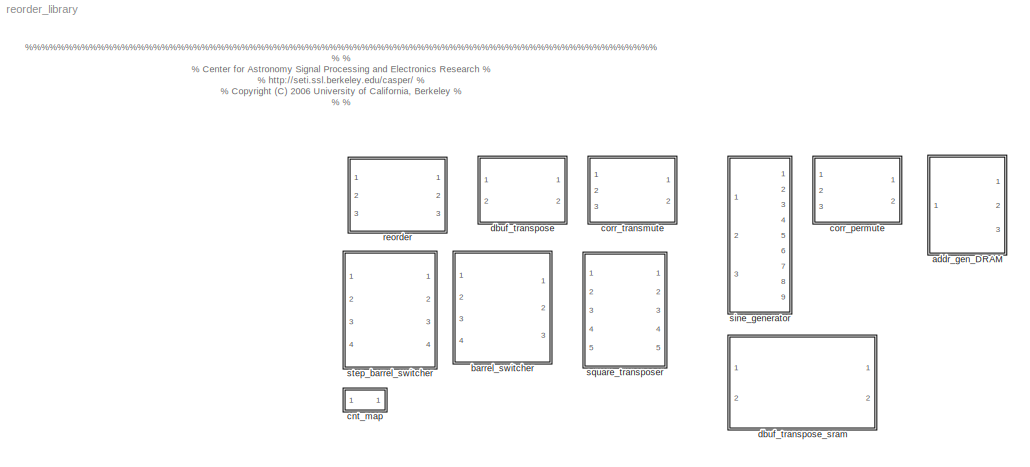
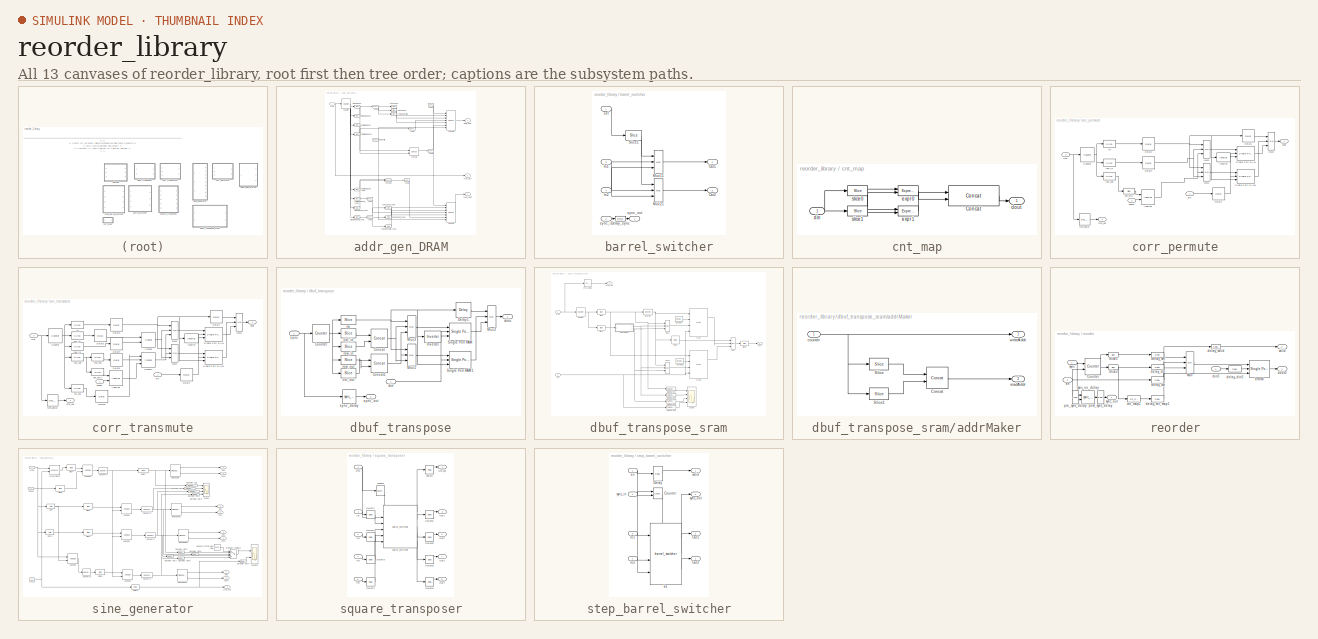
[diagram: thumbnail index - all 13 canvases of the model, root first then tree order]
MODEL reorder_library
KIND library
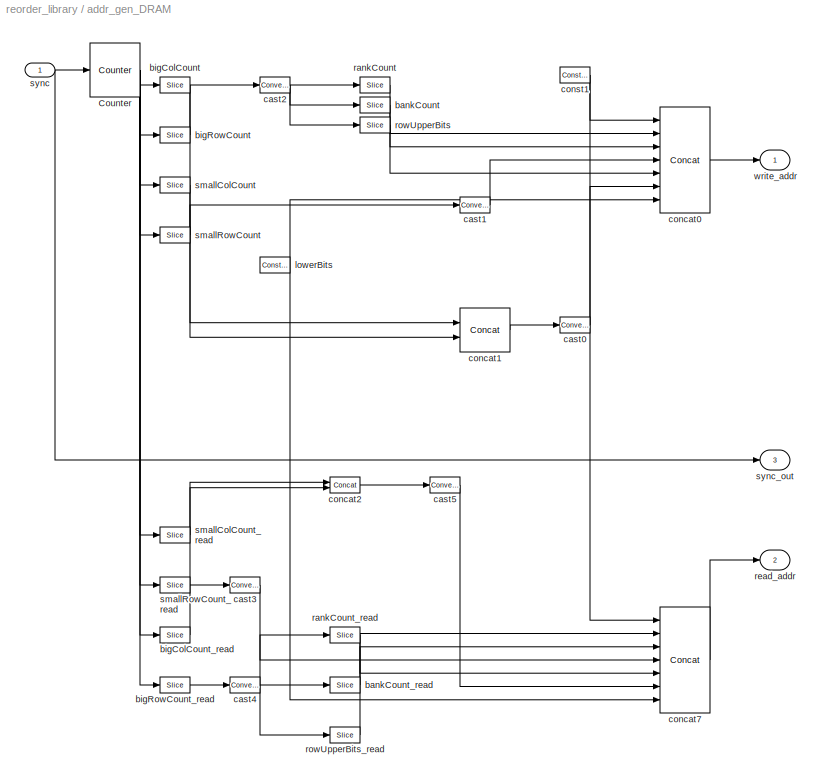
BLOCK [SubSystem] addr_gen_DRAM
  MaskCallbackString = |
  MaskEnableString = on,on
  MaskIconFrame = on
  MaskIconOpaque = on
  MaskIconRotate = none
  MaskIconUnits = autoscale
  MaskInitialization = address_gen_dram_mask_temp;
  MaskPromptString = Number of Spectrums?|Lenght of Spectrum?
  MaskStyleString = edit,edit
  MaskTabNameString = ,
  MaskToolTipString = on,on
  MaskTunableValueString = on,on
  MaskValueString = 512|1024
  MaskVarAliasString = ,
  MaskVariables = numSpecs=@1;length=@2;
  MaskVisibilityString = on,on
  MinAlgLoopOccurrences = off
  Ports = [1, 3]
  RTWSystemCode = Auto
  TreatAsAtomicUnit = off
BLOCK [Reference] addr_gen_DRAM/Counter  REF=xbsIndex_r3/Counter
  Ports = [1, 1]
  SourceBlock = xbsIndex_r3/Counter
  SourceType = Xilinx Counter Block
  arith_type = Unsigned
  bin_pt = 0
  cnt_by_val = 1
  cnt_to = Inf
  cnt_type = Free Running
  dbl_ovrd = off
  en = off
  explicit_period = off
  gen_core = off
  load_pin = off
  n_bits = counterBitwidth
  operation = Up
  period = 1
  rst = on
  show_param = off
  start_count = 0
  use_rpm = on
  xl_area = [0, 0, 0, 0, 0, 0, 0]
  xl_use_area = off
BLOCK [Reference] addr_gen_DRAM/bankCount  REF=xbsIndex_r3/Slice
  Ports = [1, 1]
  SourceBlock = xbsIndex_r3/Slice
  SourceType = Xilinx Slice Block
  base0 = LSB of Input
  base1 = MSB of Input
  bit0 = 0
  bit1 = -1
  boolean_output = off
  dbl_ovrd = off
  explicit_period = off
  mode = Upper Bit Location + Width
  nbits = 2
  period = 1
BLOCK [Reference] addr_gen_DRAM/bankCount_read  REF=xbsIndex_r3/Slice
  Ports = [1, 1]
  SourceBlock = xbsIndex_r3/Slice
  SourceType = Xilinx Slice Block
  base0 = LSB of Input
  base1 = MSB of Input
  bit0 = 0
  bit1 = -1
  boolean_output = off
  dbl_ovrd = off
  explicit_period = off
  mode = Upper Bit Location + Width
  nbits = 2
  period = 1
BLOCK [Reference] addr_gen_DRAM/bigColCount  REF=xbsIndex_r3/Slice
  Ports = [1, 1]
  SourceBlock = xbsIndex_r3/Slice
  SourceType = Xilinx Slice Block
  base0 = LSB of Input
  base1 = MSB of Input
  bit0 = smallRowBits+smallColBits+8
  bit1 = 0
  boolean_output = off
  dbl_ovrd = off
  explicit_period = off
  mode = Lower Bit Location + Width
  nbits = bigColBits
  period = 1
BLOCK [Reference] addr_gen_DRAM/bigColCount_read  REF=xbsIndex_r3/Slice
  Ports = [1, 1]
  SourceBlock = xbsIndex_r3/Slice
  SourceType = Xilinx Slice Block
  base0 = LSB of Input
  base1 = MSB of Input
  bit0 = bigRowBits
  bit1 = 0
  boolean_output = off
  dbl_ovrd = off
  explicit_period = off
  mode = Lower Bit Location + Width
  nbits = bigColBits
  period = 1
BLOCK [Reference] addr_gen_DRAM/bigRowCount  REF=xbsIndex_r3/Slice
  Ports = [1, 1]
  SourceBlock = xbsIndex_r3/Slice
  SourceType = Xilinx Slice Block
  base0 = LSB of Input
  base1 = MSB of Input
  bit0 = smallRowBits+smallColBits
  bit1 = 0
  boolean_output = off
  dbl_ovrd = off
  explicit_period = off
  mode = Lower Bit Location + Width
  nbits = bigRowBits
  period = 1
BLOCK [Reference] addr_gen_DRAM/bigRowCount_read  REF=xbsIndex_r3/Slice
  Ports = [1, 1]
  SourceBlock = xbsIndex_r3/Slice
  SourceType = Xilinx Slice Block
  base0 = LSB of Input
  base1 = MSB of Input
  bit0 = 0
  bit1 = 0
  boolean_output = off
  dbl_ovrd = off
  explicit_period = off
  mode = Lower Bit Location + Width
  nbits = bigRowBits
  period = 1
BLOCK [Reference] addr_gen_DRAM/cast0  REF=xbsIndex_r3/Convert
  Ports = [1, 1]
  SourceBlock = xbsIndex_r3/Convert
  SourceType = Xilinx Converter Block
  arith_type = Unsigned
  bin_pt = 0
  dbl_ovrd = off
  explicit_period = off
  inserted_by_tool = off
  latency = 0
  n_bits = 10
  overflow = Wrap
  period = 1
  pipeline = off
  quantization = Truncate
  show_param = off
  xl_area = [0, 0, 0, 0, 0, 0, 0]
  xl_use_area = off
BLOCK [Reference] addr_gen_DRAM/cast1  REF=xbsIndex_r3/Convert
  Ports = [1, 1]
  SourceBlock = xbsIndex_r3/Convert
  SourceType = Xilinx Converter Block
  arith_type = Unsigned
  bin_pt = 0
  dbl_ovrd = off
  explicit_period = off
  inserted_by_tool = off
  latency = 0
  n_bits = 9
  overflow = Wrap
  period = 1
  pipeline = off
  quantization = Truncate
  show_param = off
  xl_area = [0, 0, 0, 0, 0, 0, 0]
  xl_use_area = off
BLOCK [Reference] addr_gen_DRAM/cast2  REF=xbsIndex_r3/Convert
  Ports = [1, 1]
  SourceBlock = xbsIndex_r3/Convert
  SourceType = Xilinx Converter Block
  arith_type = Unsigned
  bin_pt = 0
  dbl_ovrd = off
  explicit_period = off
  inserted_by_tool = off
  latency = 0
  n_bits = 8
  overflow = Wrap
  period = 1
  pipeline = off
  quantization = Truncate
  show_param = off
  xl_area = [0, 0, 0, 0, 0, 0, 0]
  xl_use_area = off
BLOCK [Reference] addr_gen_DRAM/cast3  REF=xbsIndex_r3/Convert
  Ports = [1, 1]
  SourceBlock = xbsIndex_r3/Convert
  SourceType = Xilinx Converter Block
  arith_type = Unsigned
  bin_pt = 0
  dbl_ovrd = off
  explicit_period = off
  inserted_by_tool = off
  latency = 0
  n_bits = 9
  overflow = Wrap
  period = 1
  pipeline = off
  quantization = Truncate
  show_param = off
  xl_area = [0, 0, 0, 0, 0, 0, 0]
  xl_use_area = off
BLOCK [Reference] addr_gen_DRAM/cast4  REF=xbsIndex_r3/Convert
  Ports = [1, 1]
  SourceBlock = xbsIndex_r3/Convert
  SourceType = Xilinx Converter Block
  arith_type = Unsigned
  bin_pt = 0
  dbl_ovrd = off
  explicit_period = off
  inserted_by_tool = off
  latency = 0
  n_bits = 8
  overflow = Wrap
  period = 1
  pipeline = off
  quantization = Truncate
  show_param = off
  xl_area = [0, 0, 0, 0, 0, 0, 0]
  xl_use_area = off
BLOCK [Reference] addr_gen_DRAM/cast5  REF=xbsIndex_r3/Convert
  Ports = [1, 1]
  SourceBlock = xbsIndex_r3/Convert
  SourceType = Xilinx Converter Block
  arith_type = Unsigned
  bin_pt = 0
  dbl_ovrd = off
  explicit_period = off
  inserted_by_tool = off
  latency = 0
  n_bits = 10
  overflow = Wrap
  period = 1
  pipeline = off
  quantization = Truncate
  show_param = off
  xl_area = [0, 0, 0, 0, 0, 0, 0]
  xl_use_area = off
BLOCK [Reference] addr_gen_DRAM/concat0  REF=xbsIndex_r3/Concat
  Ports = [7, 1]
  SourceBlock = xbsIndex_r3/Concat
  SourceType = Xilinx Bus Concatenator
  dbl_ovrd = off
  explicit_period = off
  num_inputs = 7
  period = 1
BLOCK [Reference] addr_gen_DRAM/concat1  REF=xbsIndex_r3/Concat
  Ports = [2, 1]
  SourceBlock = xbsIndex_r3/Concat
  SourceType = Xilinx Bus Concatenator
  dbl_ovrd = off
  explicit_period = off
  num_inputs = 2
  period = 1
BLOCK [Reference] addr_gen_DRAM/concat2  REF=xbsIndex_r3/Concat
  Ports = [2, 1]
  SourceBlock = xbsIndex_r3/Concat
  SourceType = Xilinx Bus Concatenator
  dbl_ovrd = off
  explicit_period = off
  num_inputs = 2
  period = 1
BLOCK [Reference] addr_gen_DRAM/concat7  REF=xbsIndex_r3/Concat
  Ports = [7, 1]
  SourceBlock = xbsIndex_r3/Concat
  SourceType = Xilinx Bus Concatenator
  dbl_ovrd = off
  explicit_period = off
  num_inputs = 7
  period = 1
BLOCK [Reference] addr_gen_DRAM/const1  REF=xbsIndex_r3/Constant
  Ports = [0, 1]
  SourceBlock = xbsIndex_r3/Constant
  SourceType = Xilinx Constant Block
  arith_type = Unsigned
  bin_pt = 0
  carry = CIN
  const = 0
  dbl_ovrd = off
  equ = P=C
  explicit_period = on
  inp1 = P
  inp2 = PCIN>>17
  iostate = 0
  n_bits = 2
  opr = +
  opselect = C
  period = 1
BLOCK [Reference] addr_gen_DRAM/lowerBits  REF=xbsIndex_r3/Constant
  Ports = [0, 1]
  SourceBlock = xbsIndex_r3/Constant
  SourceType = Xilinx Constant Block
  arith_type = Unsigned
  bin_pt = 0
  carry = CIN
  const = 0
  dbl_ovrd = off
  equ = P=C
  explicit_period = on
  inp1 = P
  inp2 = PCIN>>17
  iostate = 0
  n_bits = 3
  opr = +
  opselect = C
  period = 1
BLOCK [Reference] addr_gen_DRAM/rankCount  REF=xbsIndex_r3/Slice
  Ports = [1, 1]
  SourceBlock = xbsIndex_r3/Slice
  SourceType = Xilinx Slice Block
  base0 = LSB of Input
  base1 = MSB of Input
  bit0 = 0
  bit1 = 0
  boolean_output = off
  dbl_ovrd = off
  explicit_period = off
  mode = Upper Bit Location + Width
  nbits = 1
  period = 1
BLOCK [Reference] addr_gen_DRAM/rankCount_read  REF=xbsIndex_r3/Slice
  Ports = [1, 1]
  SourceBlock = xbsIndex_r3/Slice
  SourceType = Xilinx Slice Block
  base0 = LSB of Input
  base1 = MSB of Input
  bit0 = 0
  bit1 = 0
  boolean_output = off
  dbl_ovrd = off
  explicit_period = off
  mode = Upper Bit Location + Width
  nbits = 1
  period = 1
BLOCK [Outport] addr_gen_DRAM/read_addr
  BusOutputAsStruct = off
  IconDisplay = Port number
  Port = 2
BLOCK [Reference] addr_gen_DRAM/rowUpperBits  REF=xbsIndex_r3/Slice
  Ports = [1, 1]
  SourceBlock = xbsIndex_r3/Slice
  SourceType = Xilinx Slice Block
  base0 = LSB of Input
  base1 = MSB of Input
  bit0 = 0
  bit1 = 0
  boolean_output = off
  dbl_ovrd = off
  explicit_period = off
  mode = Lower Bit Location + Width
  nbits = 5
  period = 1
BLOCK [Reference] addr_gen_DRAM/rowUpperBits_read  REF=xbsIndex_r3/Slice
  Ports = [1, 1]
  SourceBlock = xbsIndex_r3/Slice
  SourceType = Xilinx Slice Block
  base0 = LSB of Input
  base1 = MSB of Input
  bit0 = 0
  bit1 = 0
  boolean_output = off
  dbl_ovrd = off
  explicit_period = off
  mode = Lower Bit Location + Width
  nbits = 5
  period = 1
BLOCK [Reference] addr_gen_DRAM/smallColCount  REF=xbsIndex_r3/Slice
  Ports = [1, 1]
  SourceBlock = xbsIndex_r3/Slice
  SourceType = Xilinx Slice Block
  base0 = LSB of Input
  base1 = MSB of Input
  bit0 = smallRowBits
  bit1 = 0
  boolean_output = off
  dbl_ovrd = off
  explicit_period = off
  mode = Lower Bit Location + Width
  nbits = smallColBits
  period = 1
BLOCK [Reference] addr_gen_DRAM/smallColCount_read  REF=xbsIndex_r3/Slice
  Ports = [1, 1]
  SourceBlock = xbsIndex_r3/Slice
  SourceType = Xilinx Slice Block
  base0 = LSB of Input
  base1 = MSB of Input
  bit0 = bigRowBits+bigColBits+smallRowBits
  bit1 = 0
  boolean_output = off
  dbl_ovrd = off
  explicit_period = off
  mode = Lower Bit Location + Width
  nbits = smallColBits
  period = 1
BLOCK [Reference] addr_gen_DRAM/smallRowCount  REF=xbsIndex_r3/Slice
  Ports = [1, 1]
  SourceBlock = xbsIndex_r3/Slice
  SourceType = Xilinx Slice Block
  base0 = LSB of Input
  base1 = MSB of Input
  bit0 = 0
  bit1 = 0
  boolean_output = off
  dbl_ovrd = off
  explicit_period = off
  mode = Lower Bit Location + Width
  nbits = smallRowBits
  period = 1
BLOCK [Reference] addr_gen_DRAM/smallRowCount_read  REF=xbsIndex_r3/Slice
  Ports = [1, 1]
  SourceBlock = xbsIndex_r3/Slice
  SourceType = Xilinx Slice Block
  base0 = LSB of Input
  base1 = MSB of Input
  bit0 = bigRowBits+bigColBits
  bit1 = 0
  boolean_output = off
  dbl_ovrd = off
  explicit_period = off
  mode = Lower Bit Location + Width
  nbits = smallRowBits
  period = 1
BLOCK [Inport] addr_gen_DRAM/sync
  IconDisplay = Port number
  LatchInput = off
  Port = 1
BLOCK [Outport] addr_gen_DRAM/sync_out
  BusOutputAsStruct = off
  IconDisplay = Port number
  Port = 3
BLOCK [Outport] addr_gen_DRAM/write_addr
  BusOutputAsStruct = off
  IconDisplay = Port number
BLOCK [SubSystem] barrel_switcher
  MaskEnableString = on
  MaskIconFrame = on
  MaskIconOpaque = on
  MaskIconRotate = none
  MaskIconUnits = autoscale
  MaskInitialization = barrel_switcher_mask;
  MaskPromptString = Number of Inputs: (2^?)
  MaskSelfModifiable = on
  MaskStyleString = edit
  MaskToolTipString = on
  MaskTunableValueString = on
  MaskValueString = 1
  MaskVariables = n_inputs=@1;
  MaskVisibilityString = on
  MinAlgLoopOccurrences = off
  Ports = [4, 3]
  RTWSystemCode = Auto
  TreatAsAtomicUnit = off
BLOCK [Reference] barrel_switcher/Delay_sync  REF=xbsIndex_r3/Delay
  Ports = [1, 1]
  SourceBlock = xbsIndex_r3/Delay
  SourceType = Xilinx Delay Block
  accept_only_valid = off
  dbl_ovrd = off
  en = off
  explicit_period = off
  init_zero = on
  latency = 1
  period = 1
  reg_retiming = off
  show_param = off
  xl_area = [0, 0, 0, 0, 0, 0, 0]
  xl_use_area = off
BLOCK [Inport] barrel_switcher/In1
  IconDisplay = Port number
  LatchInput = off
  Port = 3
BLOCK [Inport] barrel_switcher/In2
  IconDisplay = Port number
  LatchInput = off
  Port = 4
BLOCK [Reference] barrel_switcher/Mux11  REF=xbsIndex_r3/Mux
  Ports = [3, 1]
  SourceBlock = xbsIndex_r3/Mux
  SourceType = Xilinx Multiplexer Block
  arith_type = Signed  (2's comp)
  bin_pt = 2
  dbl_ovrd = off
  en = off
  explicit_period = off
  gen_core = off
  inputs = 2
  latency = 1
  mux_type = off
  n_bits = 8
  overflow = Wrap
  period = 1
  precision = Full
  quantization = Truncate
  show_param = off
  use_rpm = off
  xl_area = [0, 0, 0, 0, 0, 0, 0]
  xl_use_area = off
BLOCK [Reference] barrel_switcher/Mux21  REF=xbsIndex_r3/Mux
  Ports = [3, 1]
  SourceBlock = xbsIndex_r3/Mux
  SourceType = Xilinx Multiplexer Block
  arith_type = Signed  (2's comp)
  bin_pt = 2
  dbl_ovrd = off
  en = off
  explicit_period = off
  gen_core = off
  inputs = 2
  latency = 1
  mux_type = off
  n_bits = 8
  overflow = Wrap
  period = 1
  precision = Full
  quantization = Truncate
  show_param = off
  use_rpm = off
  xl_area = [0, 0, 0, 0, 0, 0, 0]
  xl_use_area = off
BLOCK [Outport] barrel_switcher/Out1
  BusOutputAsStruct = off
  IconDisplay = Port number
  Port = 2
BLOCK [Outport] barrel_switcher/Out2
  BusOutputAsStruct = off
  IconDisplay = Port number
  Port = 3
BLOCK [Reference] barrel_switcher/Slice1  REF=xbsIndex_r3/Slice
  Ports = [1, 1]
  SourceBlock = xbsIndex_r3/Slice
  SourceType = Xilinx Slice Block
  base0 = LSB of Input
  base1 = MSB of Input
  bit0 = 0
  bit1 = -0
  boolean_output = off
  dbl_ovrd = off
  explicit_period = off
  mode = Upper Bit Location + Width
  nbits = 1
  period = 1
BLOCK [Inport] barrel_switcher/sel
  IconDisplay = Port number
  LatchInput = off
  Port = 1
BLOCK [Inport] barrel_switcher/sync_in
  IconDisplay = Port number
  LatchInput = off
  Port = 2
BLOCK [Outport] barrel_switcher/sync_out
  BusOutputAsStruct = off
  IconDisplay = Port number
BLOCK [SubSystem] cnt_map
  MaskCallbackString = |||
  MaskEnableString = on,on,on,on
  MaskIconFrame = on
  MaskIconOpaque = on
  MaskIconRotate = none
  MaskIconUnits = autoscale
  MaskInitialization = cnt_map_mask;
  MaskPromptString = Number of bits:|Output order:|Latency|old map
  MaskSelfModifiable = on
  MaskStyleString = edit,edit,edit,edit
  MaskTabNameString = ,,,
  MaskToolTipString = on,on,on,on
  MaskTunableValueString = on,on,on,on
  MaskType = cnt_map
  MaskValueString = 2|[0 2 1 3]|0|[0 2 1 3]
  MaskVarAliasString = ,,,
  MaskVariables = n_bits=@1;map=@2;latency=@3;old_map=@4;
  MaskVisibilityString = on,on,on,off
  MinAlgLoopOccurrences = off
  Ports = [1, 1]
  RTWSystemCode = Auto
  TreatAsAtomicUnit = off
BLOCK [Reference] cnt_map/Concat  REF=xbsIndex_r3/Concat
  Ports = [2, 1]
  SourceBlock = xbsIndex_r3/Concat
  SourceType = Xilinx Bus Concatenator
  dbl_ovrd = off
  explicit_period = off
  num_inputs = 2
  period = 1
BLOCK [Inport] cnt_map/din
  IconDisplay = Port number
  LatchInput = off
  Port = 1
BLOCK [Outport] cnt_map/dout
  BusOutputAsStruct = off
  IconDisplay = Port number
BLOCK [Reference] cnt_map/expr0  REF=xbsIndex_r3/Expression
  Ports = [2, 1]
  SourceBlock = xbsIndex_r3/Expression
  SourceType = Xilinx Expression Block
  align_bp = on
  arith_type = Unsigned
  bin_pt = 2
  dbl_ovrd = off
  en = off
  explicit_period = off
  expression = (in1)|(in0&~in0)|(in1&~in1)
  latency = latency
  n_bits = 8
  period = 1
  precision = Full
  show_param = off
  xl_area = [0, 0, 0, 0, 0, 0, 0]
  xl_use_area = off
BLOCK [Reference] cnt_map/expr1  REF=xbsIndex_r3/Expression
  Ports = [2, 1]
  SourceBlock = xbsIndex_r3/Expression
  SourceType = Xilinx Expression Block
  align_bp = on
  arith_type = Unsigned
  bin_pt = 2
  dbl_ovrd = off
  en = off
  explicit_period = off
  expression = (in0)|(in0&~in0)|(in1&~in1)
  latency = latency
  n_bits = 8
  period = 1
  precision = Full
  show_param = off
  xl_area = [0, 0, 0, 0, 0, 0, 0]
  xl_use_area = off
BLOCK [Reference] cnt_map/slice0  REF=xbsIndex_r3/Slice
  Ports = [1, 1]
  SourceBlock = xbsIndex_r3/Slice
  SourceType = Xilinx Slice Block
  base0 = LSB of Input
  base1 = MSB of Input
  bit0 = 0
  bit1 = 0
  boolean_output = off
  dbl_ovrd = off
  explicit_period = off
  mode = Lower Bit Location + Width
  nbits = 1
  period = 1
BLOCK [Reference] cnt_map/slice1  REF=xbsIndex_r3/Slice
  Ports = [1, 1]
  SourceBlock = xbsIndex_r3/Slice
  SourceType = Xilinx Slice Block
  base0 = LSB of Input
  base1 = MSB of Input
  bit0 = 1
  bit1 = -1
  boolean_output = off
  dbl_ovrd = off
  explicit_period = off
  mode = Lower Bit Location + Width
  nbits = 1
  period = 1
BLOCK [SubSystem] corr_permute
  MaskCallbackString = ||
  MaskEnableString = on,on,on
  MaskIconFrame = on
  MaskIconOpaque = on
  MaskIconRotate = none
  MaskIconUnits = autoscale
  MaskInitialization = Rows = ant_bits;
  MaskPromptString = Number of Antennas: (2^?)|Add Latency|BRAM Latency
  MaskStyleString = edit,edit,edit
  MaskTabNameString = ,,
  MaskToolTipString = on,on,on
  MaskTunableValueString = on,on,on
  MaskValueString = 4|2|2
  MaskVarAliasString = ,,
  MaskVariables = ant_bits=@1;add_latency=@2;bram_latency=@3;
  MaskVisibilityString = on,on,on
  MinAlgLoopOccurrences = off
  Ports = [3, 2]
  RTWSystemCode = Auto
  TreatAsAtomicUnit = off
BLOCK [Reference] corr_permute/AddSub  REF=xbsIndex_r3/AddSub
  Ports = [2, 1]
  SourceBlock = xbsIndex_r3/AddSub
  SourceType = Xilinx Adder/Subtractor
  arith_type = Unsigned
  bin_pt = 0
  dbl_ovrd = off
  en = off
  explicit_period = off
  gen_core = off
  latency = add_latency
  mode = Subtraction
  n_bits = ant_bits
  overflow = Wrap
  period = 1
  pipeline = off
  precision = User Defined
  quantization = Truncate
  show_param = off
  use_carryin = off
  use_carryout = off
  use_core = on
  use_rpm = on
  xl_area = [0, 0, 0, 0, 0, 0, 0]
  xl_use_area = off
BLOCK [Reference] corr_permute/Counter  REF=xbsIndex_r3/Counter
  Ports = [1, 1]
  SourceBlock = xbsIndex_r3/Counter
  SourceType = Xilinx Counter Block
  arith_type = Unsigned
  bin_pt = 0
  cnt_by_val = 1
  cnt_to = Inf
  cnt_type = Free Running
  dbl_ovrd = off
  en = off
  explicit_period = on
  gen_core = off
  load_pin = off
  n_bits = Rows  + 1
  operation = Up
  period = 1
  rst = on
  show_param = off
  start_count = 0
  use_rpm = on
  xl_area = [0, 0, 0, 0, 0, 0, 0]
  xl_use_area = off
BLOCK [Reference] corr_permute/Delay1  REF=xbsIndex_r3/Delay
  Ports = [1, 1]
  SourceBlock = xbsIndex_r3/Delay
  SourceType = Xilinx Delay Block
  accept_only_valid = off
  dbl_ovrd = off
  en = off
  explicit_period = off
  init_zero = on
  latency = bram_latency
  period = 1
  reg_retiming = off
  show_param = off
  xl_area = [0, 0, 0, 0, 0, 0, 0]
  xl_use_area = off
BLOCK [Reference] corr_permute/Delay2  REF=xbsIndex_r3/Delay
  Ports = [1, 1]
  SourceBlock = xbsIndex_r3/Delay
  SourceType = Xilinx Delay Block
  accept_only_valid = off
  dbl_ovrd = off
  en = off
  explicit_period = off
  init_zero = on
  latency = add_latency
  period = 1
  reg_retiming = off
  show_param = off
  xl_area = [0, 0, 0, 0, 0, 0, 0]
  xl_use_area = off
BLOCK [Reference] corr_permute/Delay4  REF=xbsIndex_r3/Delay
  Ports = [1, 1]
  SourceBlock = xbsIndex_r3/Delay
  SourceType = Xilinx Delay Block
  accept_only_valid = off
  dbl_ovrd = off
  en = off
  explicit_period = off
  init_zero = on
  latency = add_latency
  period = 1
  reg_retiming = off
  show_param = off
  xl_area = [0, 0, 0, 0, 0, 0, 0]
  xl_use_area = off
BLOCK [Reference] corr_permute/Delay7  REF=xbsIndex_r3/Delay
  Ports = [1, 1]
  SourceBlock = xbsIndex_r3/Delay
  SourceType = Xilinx Delay Block
  accept_only_valid = off
  dbl_ovrd = off
  en = off
  explicit_period = off
  init_zero = on
  latency = add_latency
  period = 1
  reg_retiming = off
  show_param = off
  xl_area = [0, 0, 0, 0, 0, 0, 0]
  xl_use_area = off
BLOCK [Reference] corr_permute/Inverter  REF=xbsIndex_r3/Inverter
  Ports = [1, 1]
  SourceBlock = xbsIndex_r3/Inverter
  SourceType = Xilinx Inverter
  dbl_ovrd = off
  en = off
  explicit_period = off
  latency = 0
  period = 1
  show_param = off
  xl_area = [0, 0, 0, 0, 0, 0, 0]
  xl_use_area = off
BLOCK [Reference] corr_permute/Mux1  REF=xbsIndex_r3/Mux
  Ports = [3, 1]
  SourceBlock = xbsIndex_r3/Mux
  SourceType = Xilinx Multiplexer Block
  arith_type = Signed  (2's comp)
  bin_pt = 2
  dbl_ovrd = off
  en = off
  explicit_period = off
  gen_core = off
  inputs = 2
  latency = 0
  mux_type = off
  n_bits = 8
  overflow = Wrap
  period = 1
  precision = Full
  quantization = Truncate
  show_param = off
  use_rpm = off
  xl_area = [0, 0, 0, 0, 0, 0, 0]
  xl_use_area = off
BLOCK [Reference] corr_permute/Mux2  REF=xbsIndex_r3/Mux
  Ports = [3, 1]
  SourceBlock = xbsIndex_r3/Mux
  SourceType = Xilinx Multiplexer Block
  arith_type = Signed  (2's comp)
  bin_pt = 2
  dbl_ovrd = off
  en = off
  explicit_period = off
  gen_core = off
  inputs = 2
  latency = 1
  mux_type = off
  n_bits = 8
  overflow = Wrap
  period = 1
  precision = Full
  quantization = Truncate
  show_param = off
  use_rpm = off
  xl_area = [0, 0, 0, 0, 0, 0, 0]
  xl_use_area = off
BLOCK [Reference] corr_permute/Mux3  REF=xbsIndex_r3/Mux
  Ports = [3, 1]
  SourceBlock = xbsIndex_r3/Mux
  SourceType = Xilinx Multiplexer Block
  arith_type = Signed  (2's comp)
  bin_pt = 2
  dbl_ovrd = off
  en = off
  explicit_period = off
  gen_core = off
  inputs = 2
  latency = 0
  mux_type = off
  n_bits = 8
  overflow = Wrap
  period = 1
  precision = Full
  quantization = Truncate
  show_param = off
  use_rpm = off
  xl_area = [0, 0, 0, 0, 0, 0, 0]
  xl_use_area = off
BLOCK [Reference] corr_permute/Single Port RAM  REF=xbsIndex_r3/Single Port RAM
  Ports = [3, 1]
  SourceBlock = xbsIndex_r3/Single Port RAM
  SourceType = Xilinx Single Port Random Access Memory
  dbl_ovrd = off
  depth = 2^(Rows )
  distributed_mem = off
  en = off
  explicit_period = off
  gen_core = off
  initVector = 0
  init_reg = 0
  init_zero = on
  latency = bram_latency
  period = 1
  rst = off
  show_param = off
  use_rpm = off
  write_mode = Read Before Write
  xl_area = [0, 0, 0, 0, 0, 0, 0]
  xl_use_area = off
BLOCK [Reference] corr_permute/Single Port RAM1  REF=xbsIndex_r3/Single Port RAM
  Ports = [3, 1]
  SourceBlock = xbsIndex_r3/Single Port RAM
  SourceType = Xilinx Single Port Random Access Memory
  dbl_ovrd = off
  depth = 2^(Rows)
  distributed_mem = off
  en = off
  explicit_period = off
  gen_core = off
  initVector = 0
  init_reg = 0
  init_zero = on
  latency = bram_latency
  period = 1
  rst = off
  show_param = off
  use_rpm = off
  write_mode = Read Before Write
  xl_area = [0, 0, 0, 0, 0, 0, 0]
  xl_use_area = off
BLOCK [Reference] corr_permute/ant_bits  REF=xbsIndex_r3/Slice
  Ports = [1, 1]
  SourceBlock = xbsIndex_r3/Slice
  SourceType = Xilinx Slice Block
  base0 = LSB of Input
  base1 = MSB of Input
  bit0 = 0
  bit1 = -1
  boolean_output = off
  dbl_ovrd = off
  explicit_period = off
  mode = Lower Bit Location + Width
  nbits = ant_bits
  period = 1
BLOCK [Inport] corr_permute/din
  IconDisplay = Port number
  LatchInput = off
  Port = 1
BLOCK [Outport] corr_permute/dout
  BusOutputAsStruct = off
  IconDisplay = Port number
BLOCK [Inport] corr_permute/phase
  IconDisplay = Port number
  LatchInput = off
  Port = 2
BLOCK [Reference] corr_permute/row_in  REF=xbsIndex_r3/Slice
  Ports = [1, 1]
  SourceBlock = xbsIndex_r3/Slice
  SourceType = Xilinx Slice Block
  base0 = LSB of Input
  base1 = MSB of Input
  bit0 = 0
  bit1 = 0
  boolean_output = off
  dbl_ovrd = off
  explicit_period = off
  mode = Lower Bit Location + Width
  nbits = Rows
  period = 1
BLOCK [Reference] corr_permute/row_out  REF=xbsIndex_r3/Slice
  Ports = [1, 1]
  SourceBlock = xbsIndex_r3/Slice
  SourceType = Xilinx Slice Block
  base0 = LSB of Input
  base1 = MSB of Input
  bit0 = 0
  bit1 = -1
  boolean_output = off
  dbl_ovrd = off
  explicit_period = off
  mode = Upper Bit Location + Width
  nbits = Rows
  period = 1
BLOCK [Reference] corr_permute/rw  REF=xbsIndex_r3/Slice
  Ports = [1, 1]
  SourceBlock = xbsIndex_r3/Slice
  SourceType = Xilinx Slice Block
  base0 = LSB of Input
  base1 = MSB of Input
  bit0 = 0
  bit1 = 0
  boolean_output = on
  dbl_ovrd = off
  explicit_period = off
  mode = Upper Bit Location + Width
  nbits = 1
  period = 1
BLOCK [Inport] corr_permute/sync
  IconDisplay = Port number
  LatchInput = off
  Port = 3
BLOCK [Reference] corr_permute/sync_delay  REF=fft_library/sync_delay  (lib defined in mdl_1e4ee9a0e578, mdl_700654ea79ba)
  DelayLen = 2^Rows+ add_latency + bram_latency + 1
  Ports = [1, 1]
  ShowPortLabels = on
  SourceBlock = fft_library/sync_delay
  SourceType = Unknown
BLOCK [Outport] corr_permute/sync_out
  BusOutputAsStruct = off
  IconDisplay = Port number
  Port = 2
BLOCK [SubSystem] corr_transmute
  MaskCallbackString = ||||
  MaskEnableString = on,on,on,on,on
  MaskIconFrame = on
  MaskIconOpaque = on
  MaskIconRotate = none
  MaskIconUnits = autoscale
  MaskPromptString = Rows of Matrix (data written in): (2^?)|Cols of Matrix (data read out): (2^?)|BRAM Latency|Add Latency|Number of Antennas: (2^?)
  MaskStyleString = edit,edit,edit,edit,edit
  MaskTabNameString = ,,,,
  MaskToolTipString = on,on,on,on,on
  MaskTunableValueString = on,on,on,on,on
  MaskValueString = 2|3|2|2|3
  MaskVarAliasString = ,,,,
  MaskVariables = Rows=@1;Cols=@2;bram_latency=@3;add_latency=@4;ant_bits=@5;
  MaskVisibilityString = on,on,on,on,on
  MinAlgLoopOccurrences = off
  Ports = [3, 2]
  RTWSystemCode = Auto
  TreatAsAtomicUnit = off
BLOCK [Reference] corr_transmute/AddSub  REF=xbsIndex_r3/AddSub
  Ports = [2, 1]
  SourceBlock = xbsIndex_r3/AddSub
  SourceType = Xilinx Adder/Subtractor
  arith_type = Unsigned
  bin_pt = 0
  dbl_ovrd = off
  en = off
  explicit_period = off
  gen_core = off
  latency = add_latency
  mode = Addition
  n_bits = ant_bits
  overflow = Wrap
  period = 1
  pipeline = off
  precision = User Defined
  quantization = Truncate
  show_param = off
  use_carryin = off
  use_carryout = off
  use_core = on
  use_rpm = on
  xl_area = [0, 0, 0, 0, 0, 0, 0]
  xl_use_area = off
BLOCK [Reference] corr_transmute/Concat  REF=xbsIndex_r3/Concat
  Ports = [2, 1]
  SourceBlock = xbsIndex_r3/Concat
  SourceType = Xilinx Bus Concatenator
  dbl_ovrd = off
  explicit_period = off
  num_inputs = 2
  period = 1
BLOCK [Reference] corr_transmute/Concat1  REF=xbsIndex_r3/Concat
  Ports = [3, 1]
  SourceBlock = xbsIndex_r3/Concat
  SourceType = Xilinx Bus Concatenator
  dbl_ovrd = off
  explicit_period = off
  num_inputs = 3
  period = 1
BLOCK [Reference] corr_transmute/Counter  REF=xbsIndex_r3/Counter
  Ports = [1, 1]
  SourceBlock = xbsIndex_r3/Counter
  SourceType = Xilinx Counter Block
  arith_type = Unsigned
  bin_pt = 0
  cnt_by_val = 1
  cnt_to = Inf
  cnt_type = Free Running
  dbl_ovrd = off
  en = off
  explicit_period = on
  gen_core = off
  load_pin = off
  n_bits = Rows + Cols + 1
  operation = Up
  period = 1
  rst = on
  show_param = off
  start_count = 0
  use_rpm = on
  xl_area = [0, 0, 0, 0, 0, 0, 0]
  xl_use_area = off
BLOCK [Reference] corr_transmute/Delay1  REF=xbsIndex_r3/Delay
  Ports = [1, 1]
  SourceBlock = xbsIndex_r3/Delay
  SourceType = Xilinx Delay Block
  accept_only_valid = off
  dbl_ovrd = off
  en = off
  explicit_period = off
  init_zero = on
  latency = bram_latency
  period = 1
  reg_retiming = off
  show_param = off
  xl_area = [0, 0, 0, 0, 0, 0, 0]
  xl_use_area = off
BLOCK [Reference] corr_transmute/Delay2  REF=xbsIndex_r3/Delay
  Ports = [1, 1]
  SourceBlock = xbsIndex_r3/Delay
  SourceType = Xilinx Delay Block
  accept_only_valid = off
  dbl_ovrd = off
  en = off
  explicit_period = off
  init_zero = on
  latency = add_latency
  period = 1
  reg_retiming = off
  show_param = off
  xl_area = [0, 0, 0, 0, 0, 0, 0]
  xl_use_area = off
BLOCK [Reference] corr_transmute/Delay3  REF=xbsIndex_r3/Delay
  Ports = [1, 1]
  SourceBlock = xbsIndex_r3/Delay
  SourceType = Xilinx Delay Block
  accept_only_valid = off
  dbl_ovrd = off
  en = off
  explicit_period = off
  init_zero = on
  latency = add_latency
  period = 1
  reg_retiming = off
  show_param = off
  xl_area = [0, 0, 0, 0, 0, 0, 0]
  xl_use_area = off
BLOCK [Reference] corr_transmute/Delay4  REF=xbsIndex_r3/Delay
  Ports = [1, 1]
  SourceBlock = xbsIndex_r3/Delay
  SourceType = Xilinx Delay Block
  accept_only_valid = off
  dbl_ovrd = off
  en = off
  explicit_period = off
  init_zero = on
  latency = add_latency
  period = 1
  reg_retiming = off
  show_param = off
  xl_area = [0, 0, 0, 0, 0, 0, 0]
  xl_use_area = off
BLOCK [Reference] corr_transmute/Delay5  REF=xbsIndex_r3/Delay
  Ports = [1, 1]
  SourceBlock = xbsIndex_r3/Delay
  SourceType = Xilinx Delay Block
  accept_only_valid = off
  dbl_ovrd = off
  en = off
  explicit_period = off
  init_zero = on
  latency = add_latency
  period = 1
  reg_retiming = off
  show_param = off
  xl_area = [0, 0, 0, 0, 0, 0, 0]
  xl_use_area = off
BLOCK [Reference] corr_transmute/Delay6  REF=xbsIndex_r3/Delay
  Ports = [1, 1]
  SourceBlock = xbsIndex_r3/Delay
  SourceType = Xilinx Delay Block
  accept_only_valid = off
  dbl_ovrd = off
  en = off
  explicit_period = off
  init_zero = on
  latency = add_latency
  period = 1
  reg_retiming = off
  show_param = off
  xl_area = [0, 0, 0, 0, 0, 0, 0]
  xl_use_area = off
BLOCK [Reference] corr_transmute/Delay7  REF=xbsIndex_r3/Delay
  Ports = [1, 1]
  SourceBlock = xbsIndex_r3/Delay
  SourceType = Xilinx Delay Block
  accept_only_valid = off
  dbl_ovrd = off
  en = off
  explicit_period = off
  init_zero = on
  latency = add_latency
  period = 1
  reg_retiming = off
  show_param = off
  xl_area = [0, 0, 0, 0, 0, 0, 0]
  xl_use_area = off
BLOCK [Reference] corr_transmute/Inverter  REF=xbsIndex_r3/Inverter
  Ports = [1, 1]
  SourceBlock = xbsIndex_r3/Inverter
  SourceType = Xilinx Inverter
  dbl_ovrd = off
  en = off
  explicit_period = off
  latency = 0
  period = 1
  show_param = off
  xl_area = [0, 0, 0, 0, 0, 0, 0]
  xl_use_area = off
BLOCK [Reference] corr_transmute/Mux1  REF=xbsIndex_r3/Mux
  Ports = [3, 1]
  SourceBlock = xbsIndex_r3/Mux
  SourceType = Xilinx Multiplexer Block
  arith_type = Signed  (2's comp)
  bin_pt = 2
  dbl_ovrd = off
  en = off
  explicit_period = off
  gen_core = off
  inputs = 2
  latency = 0
  mux_type = off
  n_bits = 8
  overflow = Wrap
  period = 1
  precision = Full
  quantization = Truncate
  show_param = off
  use_rpm = off
  xl_area = [0, 0, 0, 0, 0, 0, 0]
  xl_use_area = off
BLOCK [Reference] corr_transmute/Mux2  REF=xbsIndex_r3/Mux
  Ports = [3, 1]
  SourceBlock = xbsIndex_r3/Mux
  SourceType = Xilinx Multiplexer Block
  arith_type = Signed  (2's comp)
  bin_pt = 2
  dbl_ovrd = off
  en = off
  explicit_period = off
  gen_core = off
  inputs = 2
  latency = 1
  mux_type = off
  n_bits = 8
  overflow = Wrap
  period = 1
  precision = Full
  quantization = Truncate
  show_param = off
  use_rpm = off
  xl_area = [0, 0, 0, 0, 0, 0, 0]
  xl_use_area = off
BLOCK [Reference] corr_transmute/Mux3  REF=xbsIndex_r3/Mux
  Ports = [3, 1]
  SourceBlock = xbsIndex_r3/Mux
  SourceType = Xilinx Multiplexer Block
  arith_type = Signed  (2's comp)
  bin_pt = 2
  dbl_ovrd = off
  en = off
  explicit_period = off
  gen_core = off
  inputs = 2
  latency = 0
  mux_type = off
  n_bits = 8
  overflow = Wrap
  period = 1
  precision = Full
  quantization = Truncate
  show_param = off
  use_rpm = off
  xl_area = [0, 0, 0, 0, 0, 0, 0]
  xl_use_area = off
BLOCK [Reference] corr_transmute/Single Port RAM  REF=xbsIndex_r3/Single Port RAM
  Ports = [3, 1]
  SourceBlock = xbsIndex_r3/Single Port RAM
  SourceType = Xilinx Single Port Random Access Memory
  dbl_ovrd = off
  depth = 2^(Rows + Cols)
  distributed_mem = off
  en = off
  explicit_period = off
  gen_core = off
  initVector = 0
  init_reg = 0
  init_zero = on
  latency = bram_latency
  period = 1
  rst = off
  show_param = off
  use_rpm = off
  write_mode = Read Before Write
  xl_area = [0, 0, 0, 0, 0, 0, 0]
  xl_use_area = off
BLOCK [Reference] corr_transmute/Single Port RAM1  REF=xbsIndex_r3/Single Port RAM
  Ports = [3, 1]
  SourceBlock = xbsIndex_r3/Single Port RAM
  SourceType = Xilinx Single Port Random Access Memory
  dbl_ovrd = off
  depth = 2^(Rows + Cols)
  distributed_mem = off
  en = off
  explicit_period = off
  gen_core = off
  initVector = 0
  init_reg = 0
  init_zero = on
  latency = bram_latency
  period = 1
  rst = off
  show_param = off
  use_rpm = off
  write_mode = Read Before Write
  xl_area = [0, 0, 0, 0, 0, 0, 0]
  xl_use_area = off
BLOCK [Reference] corr_transmute/ant_bits  REF=xbsIndex_r3/Slice
  Ports = [1, 1]
  SourceBlock = xbsIndex_r3/Slice
  SourceType = Xilinx Slice Block
  base0 = LSB of Input
  base1 = MSB of Input
  bit0 = 0
  bit1 = -1
  boolean_output = off
  dbl_ovrd = off
  explicit_period = off
  mode = Lower Bit Location + Width
  nbits = ant_bits
  period = 1
BLOCK [Reference] corr_transmute/col_in  REF=xbsIndex_r3/Slice
  Ports = [1, 1]
  SourceBlock = xbsIndex_r3/Slice
  SourceType = Xilinx Slice Block
  base0 = LSB of Input
  base1 = MSB of Input
  bit0 = 0
  bit1 = -1
  boolean_output = off
  dbl_ovrd = off
  explicit_period = off
  mode = Upper Bit Location + Width
  nbits = Cols
  period = 1
BLOCK [Reference] corr_transmute/col_out  REF=xbsIndex_r3/Slice
  Ports = [1, 1]
  SourceBlock = xbsIndex_r3/Slice
  SourceType = Xilinx Slice Block
  base0 = LSB of Input
  base1 = MSB of Input
  bit0 = 0
  bit1 = -1
  boolean_output = off
  dbl_ovrd = off
  explicit_period = off
  mode = Lower Bit Location + Width
  nbits = Cols
  period = 1
BLOCK [Inport] corr_transmute/din
  IconDisplay = Port number
  LatchInput = off
  Port = 1
BLOCK [Outport] corr_transmute/dout
  BusOutputAsStruct = off
  IconDisplay = Port number
BLOCK [Inport] corr_transmute/phase
  IconDisplay = Port number
  LatchInput = off
  Port = 2
BLOCK [Reference] corr_transmute/row_in  REF=xbsIndex_r3/Slice
  Ports = [1, 1]
  SourceBlock = xbsIndex_r3/Slice
  SourceType = Xilinx Slice Block
  base0 = LSB of Input
  base1 = MSB of Input
  bit0 = 0
  bit1 = 0
  boolean_output = off
  dbl_ovrd = off
  explicit_period = off
  mode = Lower Bit Location + Width
  nbits = Rows
  period = 1
BLOCK [Reference] corr_transmute/row_out  REF=xbsIndex_r3/Slice
  Ports = [1, 1]
  SourceBlock = xbsIndex_r3/Slice
  SourceType = Xilinx Slice Block
  base0 = LSB of Input
  base1 = MSB of Input
  bit0 = 0
  bit1 = -1
  boolean_output = off
  dbl_ovrd = off
  explicit_period = off
  mode = Upper Bit Location + Width
  nbits = Rows
  period = 1
BLOCK [Reference] corr_transmute/rw  REF=xbsIndex_r3/Slice
  Ports = [1, 1]
  SourceBlock = xbsIndex_r3/Slice
  SourceType = Xilinx Slice Block
  base0 = LSB of Input
  base1 = MSB of Input
  bit0 = 0
  bit1 = 0
  boolean_output = on
  dbl_ovrd = off
  explicit_period = off
  mode = Upper Bit Location + Width
  nbits = 1
  period = 1
BLOCK [Inport] corr_transmute/sync
  IconDisplay = Port number
  LatchInput = off
  Port = 3
BLOCK [Reference] corr_transmute/sync_delay  REF=fft_library/sync_delay  (lib defined in mdl_1e4ee9a0e578, mdl_700654ea79ba)
  DelayLen = 2^(Rows + Cols) + add_latency + bram_latency + 1
  Ports = [1, 1]
  ShowPortLabels = on
  SourceBlock = fft_library/sync_delay
  SourceType = Unknown
BLOCK [Outport] corr_transmute/sync_out
  BusOutputAsStruct = off
  IconDisplay = Port number
  Port = 2
BLOCK [Reference] corr_transmute/the_rest  REF=xbsIndex_r3/Slice
  Ports = [1, 1]
  SourceBlock = xbsIndex_r3/Slice
  SourceType = Xilinx Slice Block
  base0 = LSB of Input
  base1 = MSB of Input
  bit0 = ant_bits
  bit1 = 0
  boolean_output = off
  dbl_ovrd = off
  explicit_period = off
  mode = Two Bit Locations
  nbits = Cols
  period = 1
BLOCK [SubSystem] dbuf_transpose
  MaskCallbackString = ||
  MaskEnableString = on,on,on
  MaskIconFrame = on
  MaskIconOpaque = on
  MaskIconRotate = none
  MaskIconUnits = autoscale
  MaskPromptString = Rows of Matrix (data written in): (2^?)|Cols of Matrix (data read out): (2^?)|BRAM Latency
  MaskStyleString = edit,edit,edit
  MaskTabNameString = ,,
  MaskToolTipString = on,on,on
  MaskTunableValueString = on,on,on
  MaskValueString = 2|3|2
  MaskVarAliasString = ,,
  MaskVariables = Rows=@1;Cols=@2;bram_latency=@3;
  MaskVisibilityString = on,on,on
  MinAlgLoopOccurrences = off
  Ports = [2, 2]
  RTWSystemCode = Auto
  TreatAsAtomicUnit = off
BLOCK [Reference] dbuf_transpose/Concat  REF=xbsIndex_r3/Concat
  Ports = [2, 1]
  SourceBlock = xbsIndex_r3/Concat
  SourceType = Xilinx Bus Concatenator
  dbl_ovrd = off
  explicit_period = off
  num_inputs = 2
  period = 1
BLOCK [Reference] dbuf_transpose/Concat1  REF=xbsIndex_r3/Concat
  Ports = [2, 1]
  SourceBlock = xbsIndex_r3/Concat
  SourceType = Xilinx Bus Concatenator
  dbl_ovrd = off
  explicit_period = off
  num_inputs = 2
  period = 1
BLOCK [Reference] dbuf_transpose/Counter  REF=xbsIndex_r3/Counter
  Ports = [1, 1]
  SourceBlock = xbsIndex_r3/Counter
  SourceType = Xilinx Counter Block
  arith_type = Unsigned
  bin_pt = 0
  cnt_by_val = 1
  cnt_to = Inf
  cnt_type = Free Running
  dbl_ovrd = off
  en = off
  explicit_period = on
  gen_core = off
  load_pin = off
  n_bits = Rows + Cols + 1
  operation = Up
  period = 1
  rst = on
  show_param = off
  start_count = 0
  use_rpm = on
  xl_area = [0, 0, 0, 0, 0, 0, 0]
  xl_use_area = off
BLOCK [Reference] dbuf_transpose/Delay1  REF=xbsIndex_r3/Delay
  Ports = [1, 1]
  SourceBlock = xbsIndex_r3/Delay
  SourceType = Xilinx Delay Block
  accept_only_valid = off
  dbl_ovrd = off
  en = off
  explicit_period = off
  init_zero = on
  latency = bram_latency
  period = 1
  reg_retiming = off
  show_param = off
  xl_area = [0, 0, 0, 0, 0, 0, 0]
  xl_use_area = off
BLOCK [Reference] dbuf_transpose/Inverter  REF=xbsIndex_r3/Inverter
  Ports = [1, 1]
  SourceBlock = xbsIndex_r3/Inverter
  SourceType = Xilinx Inverter
  dbl_ovrd = off
  en = off
  explicit_period = off
  latency = 0
  period = 1
  show_param = off
  xl_area = [0, 0, 0, 0, 0, 0, 0]
  xl_use_area = off
BLOCK [Reference] dbuf_transpose/Mux1  REF=xbsIndex_r3/Mux
  Ports = [3, 1]
  SourceBlock = xbsIndex_r3/Mux
  SourceType = Xilinx Multiplexer Block
  arith_type = Signed  (2's comp)
  bin_pt = 2
  dbl_ovrd = off
  en = off
  explicit_period = off
  gen_core = off
  inputs = 2
  latency = 0
  mux_type = off
  n_bits = 8
  overflow = Wrap
  period = 1
  precision = Full
  quantization = Truncate
  show_param = off
  use_rpm = off
  xl_area = [0, 0, 0, 0, 0, 0, 0]
  xl_use_area = off
BLOCK [Reference] dbuf_transpose/Mux2  REF=xbsIndex_r3/Mux
  Ports = [3, 1]
  SourceBlock = xbsIndex_r3/Mux
  SourceType = Xilinx Multiplexer Block
  arith_type = Signed  (2's comp)
  bin_pt = 2
  dbl_ovrd = off
  en = off
  explicit_period = off
  gen_core = off
  inputs = 2
  latency = 1
  mux_type = off
  n_bits = 8
  overflow = Wrap
  period = 1
  precision = Full
  quantization = Truncate
  show_param = off
  use_rpm = off
  xl_area = [0, 0, 0, 0, 0, 0, 0]
  xl_use_area = off
BLOCK [Reference] dbuf_transpose/Mux3  REF=xbsIndex_r3/Mux
  Ports = [3, 1]
  SourceBlock = xbsIndex_r3/Mux
  SourceType = Xilinx Multiplexer Block
  arith_type = Signed  (2's comp)
  bin_pt = 2
  dbl_ovrd = off
  en = off
  explicit_period = off
  gen_core = off
  inputs = 2
  latency = 0
  mux_type = off
  n_bits = 8
  overflow = Wrap
  period = 1
  precision = Full
  quantization = Truncate
  show_param = off
  use_rpm = off
  xl_area = [0, 0, 0, 0, 0, 0, 0]
  xl_use_area = off
BLOCK [Reference] dbuf_transpose/Single Port RAM  REF=xbsIndex_r3/Single Port RAM
  Ports = [3, 1]
  SourceBlock = xbsIndex_r3/Single Port RAM
  SourceType = Xilinx Single Port Random Access Memory
  dbl_ovrd = off
  depth = 2^(Rows + Cols)
  distributed_mem = off
  en = off
  explicit_period = off
  gen_core = off
  initVector = 0
  init_reg = 0
  init_zero = on
  latency = bram_latency
  period = 1
  rst = off
  show_param = off
  use_rpm = off
  write_mode = Read Before Write
  xl_area = [0, 0, 0, 0, 0, 0, 0]
  xl_use_area = off
BLOCK [Reference] dbuf_transpose/Single Port RAM1  REF=xbsIndex_r3/Single Port RAM
  Ports = [3, 1]
  SourceBlock = xbsIndex_r3/Single Port RAM
  SourceType = Xilinx Single Port Random Access Memory
  dbl_ovrd = off
  depth = 2^(Rows + Cols)
  distributed_mem = off
  en = off
  explicit_period = off
  gen_core = off
  initVector = 0
  init_reg = 0
  init_zero = on
  latency = bram_latency
  period = 1
  rst = off
  show_param = off
  use_rpm = off
  write_mode = Read Before Write
  xl_area = [0, 0, 0, 0, 0, 0, 0]
  xl_use_area = off
BLOCK [Reference] dbuf_transpose/col_in  REF=xbsIndex_r3/Slice
  Ports = [1, 1]
  SourceBlock = xbsIndex_r3/Slice
  SourceType = Xilinx Slice Block
  base0 = LSB of Input
  base1 = MSB of Input
  bit0 = 0
  bit1 = -1
  boolean_output = off
  dbl_ovrd = off
  explicit_period = off
  mode = Upper Bit Location + Width
  nbits = Cols
  period = 1
BLOCK [Reference] dbuf_transpose/col_out  REF=xbsIndex_r3/Slice
  Ports = [1, 1]
  SourceBlock = xbsIndex_r3/Slice
  SourceType = Xilinx Slice Block
  base0 = LSB of Input
  base1 = MSB of Input
  bit0 = 0
  bit1 = -1
  boolean_output = off
  dbl_ovrd = off
  explicit_period = off
  mode = Lower Bit Location + Width
  nbits = Cols
  period = 1
BLOCK [Inport] dbuf_transpose/din
  IconDisplay = Port number
  LatchInput = off
  Port = 1
BLOCK [Outport] dbuf_transpose/dout
  BusOutputAsStruct = off
  IconDisplay = Port number
BLOCK [Reference] dbuf_transpose/row_in  REF=xbsIndex_r3/Slice
  Ports = [1, 1]
  SourceBlock = xbsIndex_r3/Slice
  SourceType = Xilinx Slice Block
  base0 = LSB of Input
  base1 = MSB of Input
  bit0 = 0
  bit1 = 0
  boolean_output = off
  dbl_ovrd = off
  explicit_period = off
  mode = Lower Bit Location + Width
  nbits = Rows
  period = 1
BLOCK [Reference] dbuf_transpose/row_out  REF=xbsIndex_r3/Slice
  Ports = [1, 1]
  SourceBlock = xbsIndex_r3/Slice
  SourceType = Xilinx Slice Block
  base0 = LSB of Input
  base1 = MSB of Input
  bit0 = 0
  bit1 = -1
  boolean_output = off
  dbl_ovrd = off
  explicit_period = off
  mode = Upper Bit Location + Width
  nbits = Rows
  period = 1
BLOCK [Reference] dbuf_transpose/rw  REF=xbsIndex_r3/Slice
  Ports = [1, 1]
  SourceBlock = xbsIndex_r3/Slice
  SourceType = Xilinx Slice Block
  base0 = LSB of Input
  base1 = MSB of Input
  bit0 = 0
  bit1 = 0
  boolean_output = on
  dbl_ovrd = off
  explicit_period = off
  mode = Upper Bit Location + Width
  nbits = 1
  period = 1
BLOCK [Inport] dbuf_transpose/sync
  IconDisplay = Port number
  LatchInput = off
  Port = 2
BLOCK [Reference] dbuf_transpose/sync_delay  REF=fft_library/sync_delay  (lib defined in mdl_1e4ee9a0e578, mdl_700654ea79ba)
  DelayLen = 2^(Rows + Cols) + bram_latency + 1
  Ports = [1, 1]
  ShowPortLabels = on
  SourceBlock = fft_library/sync_delay
  SourceType = Unknown
BLOCK [Outport] dbuf_transpose/sync_out
  BusOutputAsStruct = off
  IconDisplay = Port number
  Port = 2
BLOCK [SubSystem] dbuf_transpose_sram
  MaskCallbackString = |
  MaskDescription = Sram transpose using double buffering method, maximum size is 256 spectrums by 2048 channels!!
  MaskEnableString = on,on
  MaskIconFrame = on
  MaskIconOpaque = on
  MaskIconRotate = none
  MaskIconUnits = autoscale
  MaskPromptString = Length of Spectrums|Number of Spectrums
  MaskStyleString = edit,edit
  MaskTabNameString = ,
  MaskToolTipString = on,on
  MaskTunableValueString = on,on
  MaskValueString = 256|256
  MaskVarAliasString = ,
  MaskVariables = length=@1;numSpecs=@2;
  MaskVisibilityString = on,on
  MinAlgLoopOccurrences = off
  Ports = [2, 2]
  RTWSystemCode = Auto
  TreatAsAtomicUnit = off
BLOCK [Reference] dbuf_transpose_sram/Constant  REF=xbsIndex_r3/Constant
  Ports = [0, 1]
  SourceBlock = xbsIndex_r3/Constant
  SourceType = Xilinx Constant Block
  arith_type = Unsigned
  bin_pt = 0
  carry = CIN
  const = 15
  dbl_ovrd = off
  equ = P=C
  explicit_period = on
  inp1 = P
  inp2 = PCIN>>17
  iostate = 0
  n_bits = 4
  opr = +
  opselect = C
  period = 1
BLOCK [Reference] dbuf_transpose_sram/Constant1  REF=xbsIndex_r3/Constant
  Ports = [0, 1]
  SourceBlock = xbsIndex_r3/Constant
  SourceType = Xilinx Constant Block
  arith_type = Unsigned
  bin_pt = 0
  carry = CIN
  const = 15
  dbl_ovrd = off
  equ = P=C
  explicit_period = on
  inp1 = P
  inp2 = PCIN>>17
  iostate = 0
  n_bits = 4
  opr = +
  opselect = C
  period = 1
BLOCK [Reference] dbuf_transpose_sram/Counter  REF=xbsIndex_r3/Counter
  Ports = [1, 1]
  SourceBlock = xbsIndex_r3/Counter
  SourceType = Xilinx Counter Block
  arith_type = Unsigned
  bin_pt = 0
  cnt_by_val = 1
  cnt_to = Inf
  cnt_type = Free Running
  dbl_ovrd = off
  en = off
  explicit_period = off
  gen_core = off
  load_pin = off
  n_bits = log2(length)+log2(numSpecs)+1
  operation = Up
  period = 1
  rst = on
  show_param = off
  start_count = 0
  use_rpm = on
  xl_area = [0, 0, 0, 0, 0, 0, 0]
  xl_use_area = off
BLOCK [Reference] dbuf_transpose_sram/Delay  REF=xbsIndex_r3/Delay
  Ports = [1, 1]
  SourceBlock = xbsIndex_r3/Delay
  SourceType = Xilinx Delay Block
  accept_only_valid = off
  dbl_ovrd = off
  en = off
  explicit_period = off
  init_zero = on
  latency = 4
  period = 1
  reg_retiming = off
  show_param = off
  xl_area = [0, 0, 0, 0, 0, 0, 0]
  xl_use_area = off
BLOCK [Reference] dbuf_transpose_sram/Gateway Out  REF=xbsIndex_r3/Gateway Out
  LOCs = {}
  Ports = [1, 1]
  SourceBlock = xbsIndex_r3/Gateway Out
  SourceType = Xilinx Gateway Out
  arith_type = Boolean
  bin_pt = 6
  hdl_port = off
  locs_specified = off
  nbits = 8
  needs_fixed_name = off
  output_type = Double
  overflow = Wrap
  quantization = Truncate
  show_param = off
  timing_constraint = None
  xl_area = [0, 0, 0, 0, 0, 0, 0]
  xl_use_area = off
BLOCK [Reference] dbuf_transpose_sram/Gateway Out1  REF=xbsIndex_r3/Gateway Out
  LOCs = {}
  Ports = [1, 1]
  SourceBlock = xbsIndex_r3/Gateway Out
  SourceType = Xilinx Gateway Out
  arith_type = Boolean
  bin_pt = 6
  hdl_port = off
  locs_specified = off
  nbits = 8
  needs_fixed_name = off
  output_type = Double
  overflow = Wrap
  quantization = Truncate
  show_param = off
  timing_constraint = None
  xl_area = [0, 0, 0, 0, 0, 0, 0]
  xl_use_area = off
BLOCK [Reference] dbuf_transpose_sram/Gateway Out2  REF=xbsIndex_r3/Gateway Out
  LOCs = {}
  Ports = [1, 1]
  SourceBlock = xbsIndex_r3/Gateway Out
  SourceType = Xilinx Gateway Out
  arith_type = Boolean
  bin_pt = 6
  hdl_port = off
  locs_specified = off
  nbits = 8
  needs_fixed_name = off
  output_type = Double
  overflow = Wrap
  quantization = Truncate
  show_param = off
  timing_constraint = None
  xl_area = [0, 0, 0, 0, 0, 0, 0]
  xl_use_area = off
BLOCK [Reference] dbuf_transpose_sram/Gateway Out3  REF=xbsIndex_r3/Gateway Out
  LOCs = {}
  Ports = [1, 1]
  SourceBlock = xbsIndex_r3/Gateway Out
  SourceType = Xilinx Gateway Out
  arith_type = Boolean
  bin_pt = 6
  hdl_port = off
  locs_specified = off
  nbits = 8
  needs_fixed_name = off
  output_type = Double
  overflow = Wrap
  quantization = Truncate
  show_param = off
  timing_constraint = None
  xl_area = [0, 0, 0, 0, 0, 0, 0]
  xl_use_area = off
BLOCK [Reference] dbuf_transpose_sram/Inverter  REF=xbsIndex_r3/Inverter
  Ports = [1, 1]
  SourceBlock = xbsIndex_r3/Inverter
  SourceType = Xilinx Inverter
  dbl_ovrd = off
  en = off
  explicit_period = off
  latency = 0
  period = 1
  show_param = off
  xl_area = [0, 0, 0, 0, 0, 0, 0]
  xl_use_area = off
BLOCK [Reference] dbuf_transpose_sram/Mux  REF=xbsIndex_r3/Mux
  Ports = [3, 1]
  SourceBlock = xbsIndex_r3/Mux
  SourceType = Xilinx Multiplexer Block
  arith_type = Signed  (2's comp)
  bin_pt = 2
  dbl_ovrd = off
  en = off
  explicit_period = off
  gen_core = off
  inputs = 2
  latency = 0
  mux_type = off
  n_bits = 8
  overflow = Wrap
  period = 1
  precision = Full
  quantization = Truncate
  show_param = off
  use_rpm = off
  xl_area = [0, 0, 0, 0, 0, 0, 0]
  xl_use_area = off
BLOCK [Reference] dbuf_transpose_sram/Mux1  REF=xbsIndex_r3/Mux
  Ports = [3, 1]
  SourceBlock = xbsIndex_r3/Mux
  SourceType = Xilinx Multiplexer Block
  arith_type = Signed  (2's comp)
  bin_pt = 2
  dbl_ovrd = off
  en = off
  explicit_period = off
  gen_core = off
  inputs = 2
  latency = 0
  mux_type = off
  n_bits = 8
  overflow = Wrap
  period = 1
  precision = Full
  quantization = Truncate
  show_param = off
  use_rpm = off
  xl_area = [0, 0, 0, 0, 0, 0, 0]
  xl_use_area = off
BLOCK [Reference] dbuf_transpose_sram/Mux2  REF=xbsIndex_r3/Mux
  Ports = [3, 1]
  SourceBlock = xbsIndex_r3/Mux
  SourceType = Xilinx Multiplexer Block
  arith_type = Signed  (2's comp)
  bin_pt = 2
  dbl_ovrd = off
  en = off
  explicit_period = off
  gen_core = off
  inputs = 2
  latency = 0
  mux_type = off
  n_bits = 8
  overflow = Wrap
  period = 1
  precision = Full
  quantization = Truncate
  show_param = off
  use_rpm = off
  xl_area = [0, 0, 0, 0, 0, 0, 0]
  xl_use_area = off
BLOCK [Scope] dbuf_transpose_sram/Scope
  DataFormat = StructureWithTime
  NumInputPorts = 4
  Ports = [4]
  SaveName = ScopeData2
  YMax = 5~5~5~5
  YMin = -5~-5~-5~-5
  ZoomMode = xonly
BLOCK [Reference] dbuf_transpose_sram/Slice  REF=xbsIndex_r3/Slice
  Ports = [1, 1]
  SourceBlock = xbsIndex_r3/Slice
  SourceType = Xilinx Slice Block
  base0 = LSB of Input
  base1 = MSB of Input
  bit0 = 0
  bit1 = 0
  boolean_output = off
  dbl_ovrd = off
  explicit_period = off
  mode = Upper Bit Location + Width
  nbits = 1
  period = 1
BLOCK [Reference] dbuf_transpose_sram/Slice1  REF=xbsIndex_r3/Slice
  Ports = [1, 1]
  SourceBlock = xbsIndex_r3/Slice
  SourceType = Xilinx Slice Block
  base0 = LSB of Input
  base1 = MSB of Input
  bit0 = 0
  bit1 = 0
  boolean_output = off
  dbl_ovrd = off
  explicit_period = off
  mode = Lower Bit Location + Width
  nbits = log2(length)+log2(numSpecs)
  period = 1
BLOCK [Reference] dbuf_transpose_sram/Slice2  REF=xbsIndex_r3/Slice
  Ports = [1, 1]
  SourceBlock = xbsIndex_r3/Slice
  SourceType = Xilinx Slice Block
  base0 = LSB of Input
  base1 = MSB of Input
  bit0 = 0
  bit1 = 0
  boolean_output = off
  dbl_ovrd = off
  explicit_period = off
  mode = Lower Bit Location + Width
  nbits = 32
  period = 1
BLOCK [SubSystem] dbuf_transpose_sram/addrMaker
  MaskCallbackString = |
  MaskEnableString = on,on
  MaskIconFrame = on
  MaskIconOpaque = on
  MaskIconRotate = none
  MaskIconUnits = autoscale
  MaskPromptString = Spectrum Lenght|Number of Spectrums
  MaskStyleString = edit,edit
  MaskTabNameString = ,
  MaskToolTipString = on,on
  MaskTunableValueString = on,on
  MaskValueString = length|numSpecs
  MaskVarAliasString = ,
  MaskVariables = length=@1;numSpecs=@2;
  MaskVisibilityString = on,on
  MinAlgLoopOccurrences = off
  Ports = [1, 2]
  RTWSystemCode = Auto
  TreatAsAtomicUnit = off
BLOCK [Reference] dbuf_transpose_sram/addrMaker/Concat  REF=xbsIndex_r3/Concat
  Ports = [2, 1]
  SourceBlock = xbsIndex_r3/Concat
  SourceType = Xilinx Bus Concatenator
  dbl_ovrd = off
  explicit_period = off
  num_inputs = 2
  period = 1
BLOCK [Reference] dbuf_transpose_sram/addrMaker/Slice  REF=xbsIndex_r3/Slice
  Ports = [1, 1]
  SourceBlock = xbsIndex_r3/Slice
  SourceType = Xilinx Slice Block
  base0 = LSB of Input
  base1 = MSB of Input
  bit0 = 0
  bit1 = 0
  boolean_output = off
  dbl_ovrd = off
  explicit_period = off
  mode = Lower Bit Location + Width
  nbits = log2(numSpecs)
  period = 1
BLOCK [Reference] dbuf_transpose_sram/addrMaker/Slice1  REF=xbsIndex_r3/Slice
  Ports = [1, 1]
  SourceBlock = xbsIndex_r3/Slice
  SourceType = Xilinx Slice Block
  base0 = LSB of Input
  base1 = MSB of Input
  bit0 = 0
  bit1 = 0
  boolean_output = off
  dbl_ovrd = off
  explicit_period = off
  mode = Upper Bit Location + Width
  nbits = log2(length)
  period = 1
BLOCK [Inport] dbuf_transpose_sram/addrMaker/counter
  IconDisplay = Port number
  LatchInput = off
  Port = 1
BLOCK [Outport] dbuf_transpose_sram/addrMaker/readAddr
  BusOutputAsStruct = off
  IconDisplay = Port number
  Port = 2
BLOCK [Outport] dbuf_transpose_sram/addrMaker/writeAddr
  BusOutputAsStruct = off
  IconDisplay = Port number
BLOCK [Inport] dbuf_transpose_sram/din
  IconDisplay = Port number
  LatchInput = off
  Port = 1
BLOCK [Outport] dbuf_transpose_sram/out
  BusOutputAsStruct = off
  IconDisplay = Port number
BLOCK [Reference] dbuf_transpose_sram/sram  REF=xps_library/sram  (lib defined in mdl_00b5cec29cd0, mdl_02ab6ecaa3d1, +5 more)
  Ports = [4, 2]
  ShowPortLabels = on
  SourceBlock = xps_library/sram
  SourceType = sram
  Tag = xps:sram
  arith_type = Unsigned
  bin_pt = 0
  sample_period = 1
  sram = 0
  use_sim = on
BLOCK [Reference] dbuf_transpose_sram/sram1  REF=xps_library/sram  (lib defined in mdl_00b5cec29cd0, mdl_02ab6ecaa3d1, +5 more)
  Ports = [4, 2]
  ShowPortLabels = on
  SourceBlock = xps_library/sram
  SourceType = sram
  Tag = xps:sram
  arith_type = Unsigned
  bin_pt = 0
  sample_period = 1
  sram = 1
  use_sim = on
BLOCK [Inport] dbuf_transpose_sram/sync	
  IconDisplay = Port number
  LatchInput = off
  Port = 2
BLOCK [Reference] dbuf_transpose_sram/sync_delay  REF=delay_lib/sync_delay  (lib defined in mdl_032c7a696b9b)
  DelayLen = length*numSpecs+4
  Ports = [1, 1]
  ShowPortLabels = on
  SourceBlock = delay_lib/sync_delay
  SourceType = Unknown
BLOCK [Outport] dbuf_transpose_sram/sync_out
  BusOutputAsStruct = off
  IconDisplay = Port number
  Port = 2
BLOCK [SubSystem] reorder
  MaskCallbackString = |||
  MaskEnableString = on,on,on,on
  MaskIconFrame = on
  MaskIconOpaque = on
  MaskIconRotate = none
  MaskIconUnits = autoscale
  MaskInitialization = reorder_mask;
  MaskPromptString = Output Order:|Number of inputs|BRAM Latency|Map Latency
  MaskSelfModifiable = on
  MaskStyleString = edit,edit,edit,edit
  MaskTabNameString = ,,,
  MaskToolTipString = on,on,on,on
  MaskTunableValueString = on,on,on,on
  MaskValueString = [0 2 1 3]|1|2|1
  MaskVarAliasString = ,,,
  MaskVariables = map=@1;n_inputs=@2;bram_latency=@3;map_latency=@4;
  MaskVisibilityString = on,on,on,on
  MinAlgLoopOccurrences = off
  Ports = [3, 3]
  RTWSystemCode = Auto
  TreatAsAtomicUnit = off
BLOCK [Reference] reorder/Counter  REF=xbsIndex_r3/Counter
  Ports = [2, 1]
  SourceBlock = xbsIndex_r3/Counter
  SourceType = Xilinx Counter Block
  arith_type = Unsigned
  bin_pt = 0
  cnt_by_val = 1
  cnt_to = 2^n_bits * order - 1
  cnt_type = Count Limited
  dbl_ovrd = off
  en = on
  explicit_period = off
  gen_core = off
  load_pin = off
  n_bits = n_bits + order_bits
  operation = Up
  period = 1
  rst = on
  show_param = off
  start_count = 0
  use_rpm = on
  xl_area = [0, 0, 0, 0, 0, 0, 0]
  xl_use_area = off
BLOCK [Reference] reorder/Mux  REF=xbsIndex_r3/Mux
  Ports = [3, 1]
  SourceBlock = xbsIndex_r3/Mux
  SourceType = Xilinx Multiplexer Block
  arith_type = Signed  (2's comp)
  bin_pt = 2
  dbl_ovrd = off
  en = off
  explicit_period = off
  gen_core = off
  inputs = 2
  latency = 1
  mux_type = off
  n_bits = 8
  overflow = Wrap
  period = 1
  precision = Full
  quantization = Truncate
  show_param = off
  use_rpm = off
  xl_area = [0, 0, 0, 0, 0, 0, 0]
  xl_use_area = off
BLOCK [Reference] reorder/Slice1  REF=xbsIndex_r3/Slice
  Ports = [1, 1]
  SourceBlock = xbsIndex_r3/Slice
  SourceType = Xilinx Slice Block
  base0 = LSB of Input
  base1 = MSB of Input
  bit0 = 0
  bit1 = 0
  boolean_output = off
  dbl_ovrd = off
  explicit_period = off
  mode = Upper Bit Location + Width
  nbits = order_bits
  period = 1
BLOCK [Reference] reorder/Slice2  REF=xbsIndex_r3/Slice
  Ports = [1, 1]
  SourceBlock = xbsIndex_r3/Slice
  SourceType = Xilinx Slice Block
  base0 = LSB of Input
  base1 = MSB of Input
  bit0 = 0
  bit1 = 0
  boolean_output = off
  dbl_ovrd = off
  explicit_period = off
  mode = Lower Bit Location + Width
  nbits = n_bits
  period = 1
BLOCK [Reference] reorder/bram0  REF=xbsIndex_r3/Single Port RAM
  Ports = [3, 1]
  SourceBlock = xbsIndex_r3/Single Port RAM
  SourceType = Xilinx Single Port Random Access Memory
  dbl_ovrd = off
  depth = 2^n_bits
  distributed_mem = off
  en = off
  explicit_period = off
  gen_core = off
  initVector = sin(pi*(0:15)/16)
  init_reg = 0
  init_zero = on
  latency = bram_latency
  period = 1
  rst = off
  show_param = off
  use_rpm = off
  write_mode = Read Before Write
  xl_area = [0, 0, 0, 0, 0, 0, 0]
  xl_use_area = off
BLOCK [Reference] reorder/cnt_map1  REF=reorder_library/cnt_map  (lib defined in mdl_1ba9cc465ea9, mdl_9ed4950f2b10)
  Ports = [1, 1]
  ShowPortLabels = on
  SourceBlock = reorder_library/cnt_map
  SourceType = cnt_map
  latency = map_latency
  map = map
  n_bits = n_bits
  old_map = [0 2 1 3]
BLOCK [Reference] reorder/delay_cnt_map1  REF=xbsIndex_r3/Delay
  Ports = [1, 1]
  SourceBlock = xbsIndex_r3/Delay
  SourceType = Xilinx Delay Block
  accept_only_valid = off
  dbl_ovrd = off
  en = off
  explicit_period = off
  init_zero = on
  latency = 0*map_latency
  period = 1
  reg_retiming = off
  show_param = off
  xl_area = [0, 0, 0, 0, 0, 0, 0]
  xl_use_area = off
BLOCK [Reference] reorder/delay_d0  REF=xbsIndex_r3/Delay
  Ports = [1, 1]
  SourceBlock = xbsIndex_r3/Delay
  SourceType = Xilinx Delay Block
  accept_only_valid = off
  dbl_ovrd = off
  en = off
  explicit_period = off
  init_zero = on
  latency = (order-1)*map_latency
  period = 1
  reg_retiming = off
  show_param = off
  xl_area = [0, 0, 0, 0, 0, 0, 0]
  xl_use_area = off
BLOCK [Reference] reorder/delay_din0  REF=xbsIndex_r3/Delay
  Ports = [1, 1]
  SourceBlock = xbsIndex_r3/Delay
  SourceType = Xilinx Delay Block
  accept_only_valid = off
  dbl_ovrd = off
  en = off
  explicit_period = off
  init_zero = on
  latency = (order-1)*map_latency+1
  period = 1
  reg_retiming = off
  show_param = off
  xl_area = [0, 0, 0, 0, 0, 0, 0]
  xl_use_area = off
BLOCK [Reference] reorder/delay_sel  REF=xbsIndex_r3/Delay
  Ports = [1, 1]
  SourceBlock = xbsIndex_r3/Delay
  SourceType = Xilinx Delay Block
  accept_only_valid = off
  dbl_ovrd = off
  en = off
  explicit_period = off
  init_zero = on
  latency = (order-1)*map_latency
  period = 1
  reg_retiming = off
  show_param = off
  xl_area = [0, 0, 0, 0, 0, 0, 0]
  xl_use_area = off
BLOCK [Reference] reorder/delay_valid  REF=xbsIndex_r3/Delay
  Ports = [1, 1]
  SourceBlock = xbsIndex_r3/Delay
  SourceType = Xilinx Delay Block
  accept_only_valid = off
  dbl_ovrd = off
  en = off
  explicit_period = off
  init_zero = on
  latency = bram_latency+1
  period = 1
  reg_retiming = off
  show_param = off
  xl_area = [0, 0, 0, 0, 0, 0, 0]
  xl_use_area = off
BLOCK [Reference] reorder/delay_we  REF=xbsIndex_r3/Delay
  Ports = [1, 1]
  SourceBlock = xbsIndex_r3/Delay
  SourceType = Xilinx Delay Block
  accept_only_valid = off
  dbl_ovrd = off
  en = off
  explicit_period = off
  init_zero = on
  latency = (order-1)*map_latency
  period = 1
  reg_retiming = off
  show_param = off
  xl_area = [0, 0, 0, 0, 0, 0, 0]
  xl_use_area = off
BLOCK [Inport] reorder/din0
  IconDisplay = Port number
  LatchInput = off
  Port = 3
BLOCK [Outport] reorder/dout0
  BusOutputAsStruct = off
  IconDisplay = Port number
  Port = 3
BLOCK [Inport] reorder/en
  IconDisplay = Port number
  LatchInput = off
  Port = 2
BLOCK [Reference] reorder/post_sync_delay  REF=xbsIndex_r3/Delay
  Ports = [1, 1]
  SourceBlock = xbsIndex_r3/Delay
  SourceType = Xilinx Delay Block
  accept_only_valid = off
  dbl_ovrd = off
  en = off
  explicit_period = off
  init_zero = on
  latency = bram_latency+1
  period = 1
  reg_retiming = off
  show_param = off
  xl_area = [0, 0, 0, 0, 0, 0, 0]
  xl_use_area = off
BLOCK [Reference] reorder/pre_sync_delay  REF=xbsIndex_r3/Delay
  Ports = [1, 1]
  SourceBlock = xbsIndex_r3/Delay
  SourceType = Xilinx Delay Block
  accept_only_valid = off
  dbl_ovrd = off
  en = off
  explicit_period = off
  init_zero = on
  latency = (order-1)*map_latency
  period = 1
  reg_retiming = off
  show_param = off
  xl_area = [0, 0, 0, 0, 0, 0, 0]
  xl_use_area = off
BLOCK [Inport] reorder/sync
  IconDisplay = Port number
  LatchInput = off
  Port = 1
BLOCK [Reference] reorder/sync_en_delay  REF=delay_lib/sync_en_delay  (lib defined in mdl_032c7a696b9b)
  DelayLen = length(map)
  Ports = [2, 1]
  ShowPortLabels = on
  SourceBlock = delay_lib/sync_en_delay
BLOCK [Outport] reorder/sync_out
  BusOutputAsStruct = off
  IconDisplay = Port number
BLOCK [Outport] reorder/valid
  BusOutputAsStruct = off
  IconDisplay = Port number
  Port = 2
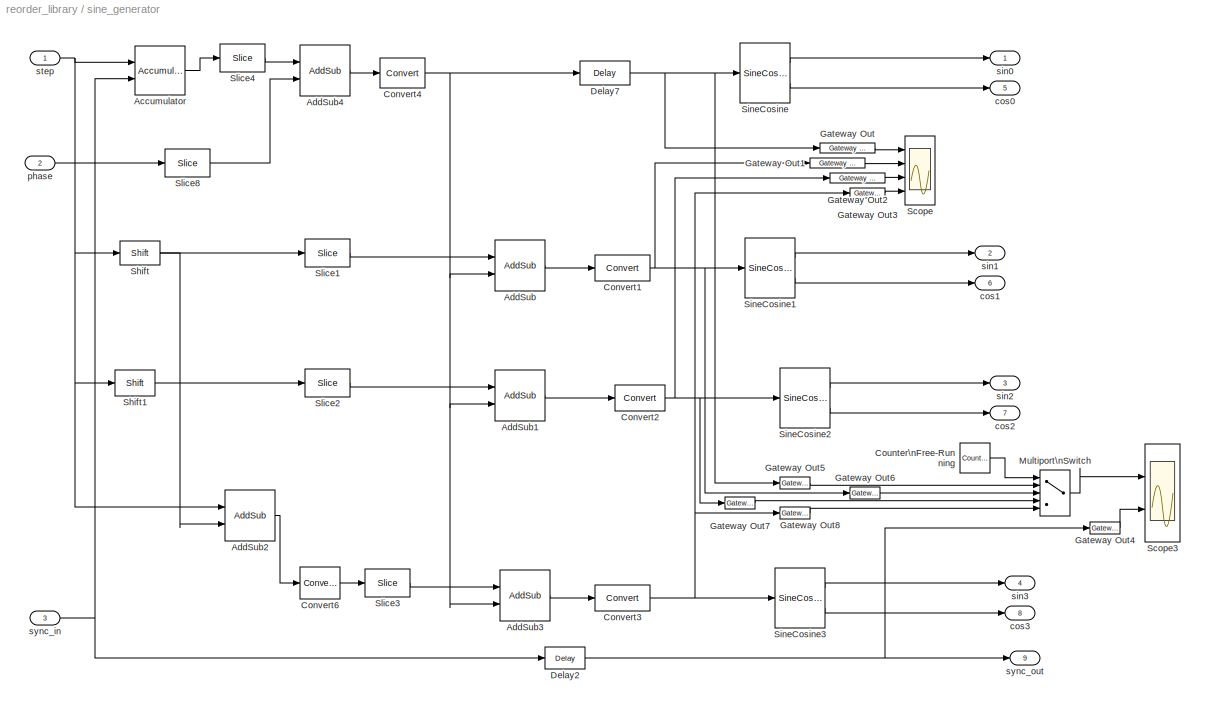
BLOCK [SubSystem] sine_generator
  MaskDescription = Outputs sine and cosine sequences with variable frequency depending on the value of step. If value of step is greater or equal to 2^24 and multiple of 4 then sin0 to sin3 (cos0 to cos3) are consecutive samples of the same sine/cos wave!  \n
  MaskEnableString = on
  MaskIconFrame = on
  MaskIconOpaque = on
  MaskIconRotate = none
  MaskIconUnits = autoscale
  MaskPromptString = bitwidth?
  MaskStyleString = edit
  MaskToolTipString = on
  MaskTunableValueString = on
  MaskValueString = 8
  MaskVariables = bits=@1;
  MaskVisibilityString = on
  MinAlgLoopOccurrences = off
  Ports = [3, 9]
  RTWSystemCode = Auto
  TreatAsAtomicUnit = off
BLOCK [Reference] sine_generator/Accumulator  REF=xbsIndex_r3/Accumulator
  Ports = [2, 1]
  SourceBlock = xbsIndex_r3/Accumulator
  SourceType = Xilinx Accumulator
  dbl_ovrd = off
  en = off
  explicit_period = off
  gen_core = off
  hasbypass = off
  n_bits = 32
  operation = Add
  overflow = Wrap
  period = 1
  rst = on
  scale = 1
  show_param = off
  use_rpm = on
  xl_area = [0, 0, 0, 0, 0, 0, 0]
  xl_use_area = off
BLOCK [Reference] sine_generator/AddSub  REF=xbsIndex_r3/AddSub
  Ports = [2, 1]
  SourceBlock = xbsIndex_r3/AddSub
  SourceType = Xilinx Adder/Subtractor
  arith_type = Unsigned
  bin_pt = 0
  dbl_ovrd = off
  en = off
  explicit_period = off
  gen_core = off
  latency = 2
  mode = Addition
  n_bits = 10
  overflow = Wrap
  period = 1
  pipeline = on
  precision = Full
  quantization = Round  (unbiased: +/- Inf)
  show_param = off
  use_carryin = off
  use_carryout = off
  use_core = on
  use_rpm = on
  xl_area = [0, 0, 0, 0, 0, 0, 0]
  xl_use_area = off
BLOCK [Reference] sine_generator/AddSub1  REF=xbsIndex_r3/AddSub
  Ports = [2, 1]
  SourceBlock = xbsIndex_r3/AddSub
  SourceType = Xilinx Adder/Subtractor
  arith_type = Unsigned
  bin_pt = 0
  dbl_ovrd = off
  en = off
  explicit_period = off
  gen_core = off
  latency = 2
  mode = Addition
  n_bits = 10
  overflow = Wrap
  period = 1
  pipeline = on
  precision = Full
  quantization = Round  (unbiased: +/- Inf)
  show_param = off
  use_carryin = off
  use_carryout = off
  use_core = on
  use_rpm = on
  xl_area = [0, 0, 0, 0, 0, 0, 0]
  xl_use_area = off
BLOCK [Reference] sine_generator/AddSub2  REF=xbsIndex_r3/AddSub
  Ports = [2, 1]
  SourceBlock = xbsIndex_r3/AddSub
  SourceType = Xilinx Adder/Subtractor
  arith_type = Unsigned
  bin_pt = 0
  dbl_ovrd = off
  en = off
  explicit_period = off
  gen_core = off
  latency = 2
  mode = Subtraction
  n_bits = 10
  overflow = Wrap
  period = 1
  pipeline = on
  precision = Full
  quantization = Round  (unbiased: +/- Inf)
  show_param = off
  use_carryin = off
  use_carryout = off
  use_core = on
  use_rpm = on
  xl_area = [0, 0, 0, 0, 0, 0, 0]
  xl_use_area = off
BLOCK [Reference] sine_generator/AddSub3  REF=xbsIndex_r3/AddSub
  Ports = [2, 1]
  SourceBlock = xbsIndex_r3/AddSub
  SourceType = Xilinx Adder/Subtractor
  arith_type = Unsigned
  bin_pt = 0
  dbl_ovrd = off
  en = off
  explicit_period = off
  gen_core = off
  latency = 2
  mode = Addition
  n_bits = 10
  overflow = Wrap
  period = 1
  pipeline = on
  precision = Full
  quantization = Round  (unbiased: +/- Inf)
  show_param = off
  use_carryin = off
  use_carryout = off
  use_core = on
  use_rpm = on
  xl_area = [0, 0, 0, 0, 0, 0, 0]
  xl_use_area = off
BLOCK [Reference] sine_generator/AddSub4  REF=xbsIndex_r3/AddSub
  Ports = [2, 1]
  SourceBlock = xbsIndex_r3/AddSub
  SourceType = Xilinx Adder/Subtractor
  arith_type = Unsigned
  bin_pt = 0
  dbl_ovrd = off
  en = off
  explicit_period = off
  gen_core = off
  latency = 2
  mode = Addition
  n_bits = 10
  overflow = Wrap
  period = 1
  pipeline = on
  precision = Full
  quantization = Round  (unbiased: +/- Inf)
  show_param = off
  use_carryin = off
  use_carryout = off
  use_core = on
  use_rpm = on
  xl_area = [0, 0, 0, 0, 0, 0, 0]
  xl_use_area = off
BLOCK [Reference] sine_generator/Convert1  REF=xbsIndex_r3/Convert
  Ports = [1, 1]
  SourceBlock = xbsIndex_r3/Convert
  SourceType = Xilinx Converter Block
  arith_type = Unsigned
  bin_pt = 0
  dbl_ovrd = off
  explicit_period = off
  inserted_by_tool = off
  latency = 2
  n_bits = 10
  overflow = Wrap
  period = 1
  pipeline = off
  quantization = Round  (unbiased: Even Values)
  show_param = off
  xl_area = [0, 0, 0, 0, 0, 0, 0]
  xl_use_area = off
BLOCK [Reference] sine_generator/Convert2  REF=xbsIndex_r3/Convert
  Ports = [1, 1]
  SourceBlock = xbsIndex_r3/Convert
  SourceType = Xilinx Converter Block
  arith_type = Unsigned
  bin_pt = 0
  dbl_ovrd = off
  explicit_period = off
  inserted_by_tool = off
  latency = 2
  n_bits = 10
  overflow = Wrap
  period = 1
  pipeline = off
  quantization = Round  (unbiased: Even Values)
  show_param = off
  xl_area = [0, 0, 0, 0, 0, 0, 0]
  xl_use_area = off
BLOCK [Reference] sine_generator/Convert3  REF=xbsIndex_r3/Convert
  Ports = [1, 1]
  SourceBlock = xbsIndex_r3/Convert
  SourceType = Xilinx Converter Block
  arith_type = Unsigned
  bin_pt = 0
  dbl_ovrd = off
  explicit_period = off
  inserted_by_tool = off
  latency = 2
  n_bits = 10
  overflow = Wrap
  period = 1
  pipeline = off
  quantization = Round  (unbiased: Even Values)
  show_param = off
  xl_area = [0, 0, 0, 0, 0, 0, 0]
  xl_use_area = off
BLOCK [Reference] sine_generator/Convert4  REF=xbsIndex_r3/Convert
  Ports = [1, 1]
  SourceBlock = xbsIndex_r3/Convert
  SourceType = Xilinx Converter Block
  arith_type = Unsigned
  bin_pt = 0
  dbl_ovrd = off
  explicit_period = off
  inserted_by_tool = off
  latency = 2
  n_bits = 10
  overflow = Wrap
  period = 1
  pipeline = off
  quantization = Round  (unbiased: Even Values)
  show_param = off
  xl_area = [0, 0, 0, 0, 0, 0, 0]
  xl_use_area = off
BLOCK [Reference] sine_generator/Convert6  REF=xbsIndex_r3/Convert
  Ports = [1, 1]
  SourceBlock = xbsIndex_r3/Convert
  SourceType = Xilinx Converter Block
  arith_type = Unsigned
  bin_pt = 0
  dbl_ovrd = off
  explicit_period = off
  inserted_by_tool = off
  latency = 2
  n_bits = 32
  overflow = Wrap
  period = 1
  pipeline = off
  quantization = Round  (unbiased: Even Values)
  show_param = off
  xl_area = [0, 0, 0, 0, 0, 0, 0]
  xl_use_area = off
BLOCK [Reference] sine_generator/Counter\nFree-Running  REF=simulink/Sources/Counter\nFree-Running
  NumBits = 2
  Ports = [0, 1]
  ShowPortLabels = on
  SourceBlock = simulink/Sources/Counter\nFree-Running
  SourceType = Counter Free-Running
  tsamp = .25
BLOCK [Reference] sine_generator/Delay2  REF=xbsIndex_r3/Delay
  Ports = [1, 1]
  SourceBlock = xbsIndex_r3/Delay
  SourceType = Xilinx Delay Block
  accept_only_valid = off
  dbl_ovrd = off
  en = off
  explicit_period = off
  init_zero = on
  latency = 10
  period = 1
  reg_retiming = off
  show_param = off
  xl_area = [0, 0, 0, 0, 0, 0, 0]
  xl_use_area = off
BLOCK [Reference] sine_generator/Delay7  REF=xbsIndex_r3/Delay
  Ports = [1, 1]
  SourceBlock = xbsIndex_r3/Delay
  SourceType = Xilinx Delay Block
  accept_only_valid = off
  dbl_ovrd = off
  en = off
  explicit_period = off
  init_zero = on
  latency = 4
  period = 1
  reg_retiming = off
  show_param = off
  xl_area = [0, 0, 0, 0, 0, 0, 0]
  xl_use_area = off
BLOCK [Reference] sine_generator/Gateway Out  REF=xbsIndex_r3/Gateway Out
  LOCs = {}
  Ports = [1, 1]
  SourceBlock = xbsIndex_r3/Gateway Out
  SourceType = Xilinx Gateway Out
  arith_type = Boolean
  bin_pt = 6
  hdl_port = off
  locs_specified = off
  nbits = 8
  needs_fixed_name = off
  output_type = Double
  overflow = Wrap
  quantization = Truncate
  show_param = off
  timing_constraint = None
  xl_area = [0, 0, 0, 0, 0, 0, 0]
  xl_use_area = off
BLOCK [Reference] sine_generator/Gateway Out1  REF=xbsIndex_r3/Gateway Out
  LOCs = {}
  Ports = [1, 1]
  SourceBlock = xbsIndex_r3/Gateway Out
  SourceType = Xilinx Gateway Out
  arith_type = Boolean
  bin_pt = 6
  hdl_port = off
  locs_specified = off
  nbits = 8
  needs_fixed_name = off
  output_type = Double
  overflow = Wrap
  quantization = Truncate
  show_param = off
  timing_constraint = None
  xl_area = [0, 0, 0, 0, 0, 0, 0]
  xl_use_area = off
BLOCK [Reference] sine_generator/Gateway Out2  REF=xbsIndex_r3/Gateway Out
  LOCs = {}
  Ports = [1, 1]
  SourceBlock = xbsIndex_r3/Gateway Out
  SourceType = Xilinx Gateway Out
  arith_type = Boolean
  bin_pt = 6
  hdl_port = off
  locs_specified = off
  nbits = 8
  needs_fixed_name = off
  output_type = Double
  overflow = Wrap
  quantization = Truncate
  show_param = off
  timing_constraint = None
  xl_area = [0, 0, 0, 0, 0, 0, 0]
  xl_use_area = off
BLOCK [Reference] sine_generator/Gateway Out3  REF=xbsIndex_r3/Gateway Out
  LOCs = {}
  Ports = [1, 1]
  SourceBlock = xbsIndex_r3/Gateway Out
  SourceType = Xilinx Gateway Out
  arith_type = Boolean
  bin_pt = 6
  hdl_port = off
  locs_specified = off
  nbits = 8
  needs_fixed_name = off
  output_type = Double
  overflow = Wrap
  quantization = Truncate
  show_param = off
  timing_constraint = None
  xl_area = [0, 0, 0, 0, 0, 0, 0]
  xl_use_area = off
BLOCK [Reference] sine_generator/Gateway Out4  REF=xbsIndex_r3/Gateway Out
  LOCs = {}
  Ports = [1, 1]
  SourceBlock = xbsIndex_r3/Gateway Out
  SourceType = Xilinx Gateway Out
  arith_type = Boolean
  bin_pt = 6
  hdl_port = off
  locs_specified = off
  nbits = 8
  needs_fixed_name = off
  output_type = Double
  overflow = Wrap
  quantization = Truncate
  show_param = off
  timing_constraint = None
  xl_area = [0, 0, 0, 0, 0, 0, 0]
  xl_use_area = off
BLOCK [Reference] sine_generator/Gateway Out5  REF=xbsIndex_r3/Gateway Out
  LOCs = {}
  Ports = [1, 1]
  SourceBlock = xbsIndex_r3/Gateway Out
  SourceType = Xilinx Gateway Out
  arith_type = Boolean
  bin_pt = 6
  hdl_port = off
  locs_specified = off
  nbits = 8
  needs_fixed_name = off
  output_type = Double
  overflow = Wrap
  quantization = Truncate
  show_param = off
  timing_constraint = None
  xl_area = [0, 0, 0, 0, 0, 0, 0]
  xl_use_area = off
BLOCK [Reference] sine_generator/Gateway Out6  REF=xbsIndex_r3/Gateway Out
  LOCs = {}
  Ports = [1, 1]
  SourceBlock = xbsIndex_r3/Gateway Out
  SourceType = Xilinx Gateway Out
  arith_type = Boolean
  bin_pt = 6
  hdl_port = off
  locs_specified = off
  nbits = 8
  needs_fixed_name = off
  output_type = Double
  overflow = Wrap
  quantization = Truncate
  show_param = off
  timing_constraint = None
  xl_area = [0, 0, 0, 0, 0, 0, 0]
  xl_use_area = off
BLOCK [Reference] sine_generator/Gateway Out7  REF=xbsIndex_r3/Gateway Out
  LOCs = {}
  Ports = [1, 1]
  SourceBlock = xbsIndex_r3/Gateway Out
  SourceType = Xilinx Gateway Out
  arith_type = Boolean
  bin_pt = 6
  hdl_port = off
  locs_specified = off
  nbits = 8
  needs_fixed_name = off
  output_type = Double
  overflow = Wrap
  quantization = Truncate
  show_param = off
  timing_constraint = None
  xl_area = [0, 0, 0, 0, 0, 0, 0]
  xl_use_area = off
BLOCK [Reference] sine_generator/Gateway Out8  REF=xbsIndex_r3/Gateway Out
  LOCs = {}
  Ports = [1, 1]
  SourceBlock = xbsIndex_r3/Gateway Out
  SourceType = Xilinx Gateway Out
  arith_type = Boolean
  bin_pt = 6
  hdl_port = off
  locs_specified = off
  nbits = 8
  needs_fixed_name = off
  output_type = Double
  overflow = Wrap
  quantization = Truncate
  show_param = off
  timing_constraint = None
  xl_area = [0, 0, 0, 0, 0, 0, 0]
  xl_use_area = off
BLOCK [MultiPortSwitch] sine_generator/Multiport\nSwitch
  InputSameDT = off
  Ports = [5, 1]
  SaturateOnIntegerOverflow = off
  zeroidx = on
BLOCK [Scope] sine_generator/Scope
  DataFormat = StructureWithTime
  NumInputPorts = 4
  Ports = [4]
  SaveName = ScopeData3
  YMax = 5~5~5~5
  YMin = -5~-5~-5~-5
  ZoomMode = xonly
BLOCK [Scope] sine_generator/Scope3
  DataFormat = StructureWithTime
  LimitDataPoints = off
  NumInputPorts = 2
  Ports = [2]
  SaveName = ScopeData4
  YMax = 5~5
  YMin = -5~-5
BLOCK [Reference] sine_generator/Shift  REF=xbsIndex_r3/Shift
  Ports = [1, 1]
  SourceBlock = xbsIndex_r3/Shift
  SourceType = Xilinx Shift Block
  arith_type = Signed  (2's comp)
  bin_pt = 2
  dbl_ovrd = off
  en = off
  explicit_period = off
  latency = 0
  n_bits = 8
  overflow = Wrap
  period = 1
  precision = Full
  quantization = Truncate
  shift_bits = 2
  shift_dir = Right
  show_param = off
  xl_area = [0, 0, 0, 0, 0, 0, 0]
  xl_use_area = off
BLOCK [Reference] sine_generator/Shift1  REF=xbsIndex_r3/Shift
  Ports = [1, 1]
  SourceBlock = xbsIndex_r3/Shift
  SourceType = Xilinx Shift Block
  arith_type = Signed  (2's comp)
  bin_pt = 2
  dbl_ovrd = off
  en = off
  explicit_period = off
  latency = 0
  n_bits = 8
  overflow = Wrap
  period = 1
  precision = Full
  quantization = Truncate
  shift_bits = 1
  shift_dir = Right
  show_param = off
  xl_area = [0, 0, 0, 0, 0, 0, 0]
  xl_use_area = off
BLOCK [Reference] sine_generator/SineCosine  REF=xbsIndex_r3/SineCosine
  Ports = [1, 2]
  SourceBlock = xbsIndex_r3/SineCosine
  SourceType = Xilinx Sine/Cosine Block
  dbl_ovrd = off
  en = off
  explicit_period = off
  gen_core = off
  latency = 2
  mem_type = Block RAM
  mode = Sine and Cosine
  n_bits = bits
  neg_cos = off
  neg_sin = off
  period = 1
  pipeline = on
  show_param = off
  sym_output = off
  use_rpm = on
  xl_area = [0, 0, 0, 0, 0, 0, 0]
  xl_use_area = off
BLOCK [Reference] sine_generator/SineCosine1  REF=xbsIndex_r3/SineCosine
  Ports = [1, 2]
  SourceBlock = xbsIndex_r3/SineCosine
  SourceType = Xilinx Sine/Cosine Block
  dbl_ovrd = off
  en = off
  explicit_period = off
  gen_core = off
  latency = 2
  mem_type = Block RAM
  mode = Sine and Cosine
  n_bits = bits
  neg_cos = off
  neg_sin = off
  period = 1
  pipeline = on
  show_param = off
  sym_output = off
  use_rpm = on
  xl_area = [0, 0, 0, 0, 0, 0, 0]
  xl_use_area = off
BLOCK [Reference] sine_generator/SineCosine2  REF=xbsIndex_r3/SineCosine
  Ports = [1, 2]
  SourceBlock = xbsIndex_r3/SineCosine
  SourceType = Xilinx Sine/Cosine Block
  dbl_ovrd = off
  en = off
  explicit_period = off
  gen_core = off
  latency = 2
  mem_type = Block RAM
  mode = Sine and Cosine
  n_bits = bits
  neg_cos = off
  neg_sin = off
  period = 1
  pipeline = on
  show_param = off
  sym_output = off
  use_rpm = on
  xl_area = [0, 0, 0, 0, 0, 0, 0]
  xl_use_area = off
BLOCK [Reference] sine_generator/SineCosine3  REF=xbsIndex_r3/SineCosine
  Ports = [1, 2]
  SourceBlock = xbsIndex_r3/SineCosine
  SourceType = Xilinx Sine/Cosine Block
  dbl_ovrd = off
  en = off
  explicit_period = off
  gen_core = off
  latency = 2
  mem_type = Block RAM
  mode = Sine and Cosine
  n_bits = bits
  neg_cos = off
  neg_sin = off
  period = 1
  pipeline = on
  show_param = off
  sym_output = off
  use_rpm = on
  xl_area = [0, 0, 0, 0, 0, 0, 0]
  xl_use_area = off
BLOCK [Reference] sine_generator/Slice1  REF=xbsIndex_r3/Slice
  Ports = [1, 1]
  SourceBlock = xbsIndex_r3/Slice
  SourceType = Xilinx Slice Block
  base0 = LSB of Input
  base1 = MSB of Input
  bit0 = 0
  bit1 = -2
  boolean_output = off
  dbl_ovrd = off
  explicit_period = off
  mode = Upper Bit Location + Width
  nbits = 10
  period = 1
BLOCK [Reference] sine_generator/Slice2  REF=xbsIndex_r3/Slice
  Ports = [1, 1]
  SourceBlock = xbsIndex_r3/Slice
  SourceType = Xilinx Slice Block
  base0 = LSB of Input
  base1 = MSB of Input
  bit0 = 0
  bit1 = -2
  boolean_output = off
  dbl_ovrd = off
  explicit_period = off
  mode = Upper Bit Location + Width
  nbits = 10
  period = 1
BLOCK [Reference] sine_generator/Slice3  REF=xbsIndex_r3/Slice
  Ports = [1, 1]
  SourceBlock = xbsIndex_r3/Slice
  SourceType = Xilinx Slice Block
  base0 = LSB of Input
  base1 = MSB of Input
  bit0 = 0
  bit1 = -2
  boolean_output = off
  dbl_ovrd = off
  explicit_period = off
  mode = Upper Bit Location + Width
  nbits = 10
  period = 1
BLOCK [Reference] sine_generator/Slice4  REF=xbsIndex_r3/Slice
  Ports = [1, 1]
  SourceBlock = xbsIndex_r3/Slice
  SourceType = Xilinx Slice Block
  base0 = LSB of Input
  base1 = MSB of Input
  bit0 = 0
  bit1 = -2
  boolean_output = off
  dbl_ovrd = off
  explicit_period = off
  mode = Upper Bit Location + Width
  nbits = 10
  period = 1
BLOCK [Reference] sine_generator/Slice8  REF=xbsIndex_r3/Slice
  Ports = [1, 1]
  SourceBlock = xbsIndex_r3/Slice
  SourceType = Xilinx Slice Block
  base0 = LSB of Input
  base1 = MSB of Input
  bit0 = 0
  bit1 = 0
  boolean_output = off
  dbl_ovrd = off
  explicit_period = off
  mode = Lower Bit Location + Width
  nbits = 10
  period = 1
BLOCK [Outport] sine_generator/cos0
  BusOutputAsStruct = off
  IconDisplay = Port number
  Port = 5
BLOCK [Outport] sine_generator/cos1
  BusOutputAsStruct = off
  IconDisplay = Port number
  Port = 6
BLOCK [Outport] sine_generator/cos2
  BusOutputAsStruct = off
  IconDisplay = Port number
  Port = 7
BLOCK [Outport] sine_generator/cos3
  BusOutputAsStruct = off
  IconDisplay = Port number
  Port = 8
BLOCK [Inport] sine_generator/phase
  IconDisplay = Port number
  LatchInput = off
  Port = 2
BLOCK [Outport] sine_generator/sin0
  BusOutputAsStruct = off
  IconDisplay = Port number
BLOCK [Outport] sine_generator/sin1
  BusOutputAsStruct = off
  IconDisplay = Port number
  Port = 2
BLOCK [Outport] sine_generator/sin2
  BusOutputAsStruct = off
  IconDisplay = Port number
  Port = 3
BLOCK [Outport] sine_generator/sin3
  BusOutputAsStruct = off
  IconDisplay = Port number
  Port = 4
BLOCK [Inport] sine_generator/step
  IconDisplay = Port number
  LatchInput = off
  Port = 1
BLOCK [Inport] sine_generator/sync_in
  IconDisplay = Port number
  LatchInput = off
  Port = 3
BLOCK [Outport] sine_generator/sync_out
  BusOutputAsStruct = off
  IconDisplay = Port number
  Port = 9
BLOCK [SubSystem] square_transposer
  MaskEnableString = on
  MaskIconFrame = on
  MaskIconOpaque = on
  MaskIconRotate = none
  MaskIconUnits = autoscale
  MaskInitialization = square_transposer_mask;
  MaskPromptString = Number of inputs (2^?):
  MaskSelfModifiable = on
  MaskStyleString = edit
  MaskToolTipString = on
  MaskTunableValueString = on
  MaskValueString = 2
  MaskVariables = n_inputs=@1;
  MaskVisibilityString = on
  MinAlgLoopOccurrences = off
  Ports = [5, 5]
  RTWSystemCode = Auto
  TreatAsAtomicUnit = off
BLOCK [Reference] square_transposer/Delayb1  REF=xbsIndex_r3/Delay
  Ports = [1, 1]
  SourceBlock = xbsIndex_r3/Delay
  SourceType = Xilinx Delay Block
  accept_only_valid = off
  dbl_ovrd = off
  en = off
  explicit_period = off
  init_zero = on
  latency = 3
  period = 1
  reg_retiming = off
  show_param = off
  xl_area = [0, 0, 0, 0, 0, 0, 0]
  xl_use_area = off
BLOCK [Reference] square_transposer/Delayb2  REF=xbsIndex_r3/Delay
  Ports = [1, 1]
  SourceBlock = xbsIndex_r3/Delay
  SourceType = Xilinx Delay Block
  accept_only_valid = off
  dbl_ovrd = off
  en = off
  explicit_period = off
  init_zero = on
  latency = 2
  period = 1
  reg_retiming = off
  show_param = off
  xl_area = [0, 0, 0, 0, 0, 0, 0]
  xl_use_area = off
BLOCK [Reference] square_transposer/Delayb3  REF=xbsIndex_r3/Delay
  Ports = [1, 1]
  SourceBlock = xbsIndex_r3/Delay
  SourceType = Xilinx Delay Block
  accept_only_valid = off
  dbl_ovrd = off
  en = off
  explicit_period = off
  init_zero = on
  latency = 1
  period = 1
  reg_retiming = off
  show_param = off
  xl_area = [0, 0, 0, 0, 0, 0, 0]
  xl_use_area = off
BLOCK [Reference] square_transposer/Delayb4  REF=xbsIndex_r3/Delay
  Ports = [1, 1]
  SourceBlock = xbsIndex_r3/Delay
  SourceType = Xilinx Delay Block
  accept_only_valid = off
  dbl_ovrd = off
  en = off
  explicit_period = off
  init_zero = on
  latency = 0
  period = 1
  reg_retiming = off
  show_param = off
  xl_area = [0, 0, 0, 0, 0, 0, 0]
  xl_use_area = off
BLOCK [Reference] square_transposer/Delayf1  REF=xbsIndex_r3/Delay
  Ports = [1, 1]
  SourceBlock = xbsIndex_r3/Delay
  SourceType = Xilinx Delay Block
  accept_only_valid = off
  dbl_ovrd = off
  en = off
  explicit_period = off
  init_zero = on
  latency = 0
  period = 1
  reg_retiming = off
  show_param = off
  xl_area = [0, 0, 0, 0, 0, 0, 0]
  xl_use_area = off
BLOCK [Reference] square_transposer/Delayf2  REF=xbsIndex_r3/Delay
  Ports = [1, 1]
  SourceBlock = xbsIndex_r3/Delay
  SourceType = Xilinx Delay Block
  accept_only_valid = off
  dbl_ovrd = off
  en = off
  explicit_period = off
  init_zero = on
  latency = 1
  period = 1
  reg_retiming = off
  show_param = off
  xl_area = [0, 0, 0, 0, 0, 0, 0]
  xl_use_area = off
BLOCK [Reference] square_transposer/Delayf3  REF=xbsIndex_r3/Delay
  Ports = [1, 1]
  SourceBlock = xbsIndex_r3/Delay
  SourceType = Xilinx Delay Block
  accept_only_valid = off
  dbl_ovrd = off
  en = off
  explicit_period = off
  init_zero = on
  latency = 2
  period = 1
  reg_retiming = off
  show_param = off
  xl_area = [0, 0, 0, 0, 0, 0, 0]
  xl_use_area = off
BLOCK [Reference] square_transposer/Delayf4  REF=xbsIndex_r3/Delay
  Ports = [1, 1]
  SourceBlock = xbsIndex_r3/Delay
  SourceType = Xilinx Delay Block
  accept_only_valid = off
  dbl_ovrd = off
  en = off
  explicit_period = off
  init_zero = on
  latency = 3
  period = 1
  reg_retiming = off
  show_param = off
  xl_area = [0, 0, 0, 0, 0, 0, 0]
  xl_use_area = off
BLOCK [Inport] square_transposer/In1
  IconDisplay = Port number
  LatchInput = off
  Port = 2
BLOCK [Inport] square_transposer/In2
  IconDisplay = Port number
  LatchInput = off
  Port = 3
BLOCK [Inport] square_transposer/In3
  IconDisplay = Port number
  LatchInput = off
  Port = 4
BLOCK [Inport] square_transposer/In4
  IconDisplay = Port number
  LatchInput = off
  Port = 5
BLOCK [Outport] square_transposer/Out1
  BusOutputAsStruct = off
  IconDisplay = Port number
  Port = 2
BLOCK [Outport] square_transposer/Out2
  BusOutputAsStruct = off
  IconDisplay = Port number
  Port = 3
BLOCK [Outport] square_transposer/Out3
  BusOutputAsStruct = off
  IconDisplay = Port number
  Port = 4
BLOCK [Outport] square_transposer/Out4
  BusOutputAsStruct = off
  IconDisplay = Port number
  Port = 5
BLOCK [Reference] square_transposer/barrel_switcher  REF=reorder_library/barrel_switcher  (lib defined in mdl_1ba9cc465ea9, mdl_9ed4950f2b10)
  Ports = [6, 5]
  ShowPortLabels = on
  SourceBlock = reorder_library/barrel_switcher
  SourceType = Unknown
  n_inputs = n_inputs
BLOCK [Reference] square_transposer/counter  REF=xbsIndex_r3/Counter
  Ports = [1, 1]
  SourceBlock = xbsIndex_r3/Counter
  SourceType = Xilinx Counter Block
  arith_type = Unsigned
  bin_pt = 0
  cnt_by_val = 1
  cnt_to = Inf
  cnt_type = Free Running
  dbl_ovrd = off
  en = off
  explicit_period = off
  gen_core = off
  load_pin = off
  n_bits = n_inputs
  operation = Down
  period = 1
  rst = on
  show_param = off
  start_count = 0
  use_rpm = on
  xl_area = [0, 0, 0, 0, 0, 0, 0]
  xl_use_area = off
BLOCK [Reference] square_transposer/delay0  REF=xbsIndex_r3/Delay
  Ports = [1, 1]
  SourceBlock = xbsIndex_r3/Delay
  SourceType = Xilinx Delay Block
  accept_only_valid = off
  dbl_ovrd = off
  en = off
  explicit_period = off
  init_zero = on
  latency = 2^n_inputs - 1
  period = 1
  reg_retiming = off
  show_param = off
  xl_area = [0, 0, 0, 0, 0, 0, 0]
  xl_use_area = off
BLOCK [Inport] square_transposer/sync
  IconDisplay = Port number
  LatchInput = off
  Port = 1
BLOCK [Outport] square_transposer/sync_out
  BusOutputAsStruct = off
  IconDisplay = Port number
BLOCK [SubSystem] step_barrel_switcher
  MaskCallbackString = |
  MaskEnableString = on,on
  MaskIconFrame = on
  MaskIconOpaque = on
  MaskIconRotate = none
  MaskIconUnits = autoscale
  MaskInitialization = step_barrel_switcher_mask;
  MaskPromptString = Number of Inputs: (2^?)|Step Direction
  MaskSelfModifiable = on
  MaskStyleString = edit,popup(Up|Down)
  MaskTabNameString = ,
  MaskToolTipString = on,on
  MaskTunableValueString = on,on
  MaskValueString = 1|Up
  MaskVarAliasString = ,
  MaskVariables = n_inputs=@1;step_dir=&2;
  MaskVisibilityString = on,on
  MinAlgLoopOccurrences = off
  Ports = [4, 4]
  RTWSystemCode = Auto
  TreatAsAtomicUnit = off
BLOCK [Reference] step_barrel_switcher/Counter  REF=xbsIndex_r3/Counter
  Ports = [2, 1]
  SourceBlock = xbsIndex_r3/Counter
  SourceType = Xilinx Counter Block
  arith_type = Unsigned
  bin_pt = 0
  cnt_by_val = 1
  cnt_to = Inf
  cnt_type = Free Running
  dbl_ovrd = off
  en = on
  explicit_period = off
  gen_core = off
  load_pin = off
  n_bits = n_inputs
  operation = Up
  period = 1
  rst = on
  show_param = off
  start_count = 0
  use_rpm = on
  xl_area = [0, 0, 0, 0, 0, 0, 0]
  xl_use_area = off
BLOCK [Reference] step_barrel_switcher/Delay  REF=xbsIndex_r3/Delay
  Ports = [1, 1]
  SourceBlock = xbsIndex_r3/Delay
  SourceType = Xilinx Delay Block
  accept_only_valid = off
  dbl_ovrd = off
  en = off
  explicit_period = off
  init_zero = on
  latency = 2
  period = 1
  reg_retiming = off
  show_param = off
  xl_area = [0, 0, 0, 0, 0, 0, 0]
  xl_use_area = off
BLOCK [Inport] step_barrel_switcher/In1
  IconDisplay = Port number
  LatchInput = off
  Port = 3
BLOCK [Inport] step_barrel_switcher/In2
  IconDisplay = Port number
  LatchInput = off
  Port = 4
BLOCK [Outport] step_barrel_switcher/Out1
  BusOutputAsStruct = off
  IconDisplay = Port number
  Port = 3
BLOCK [Outport] step_barrel_switcher/Out2
  BusOutputAsStruct = off
  IconDisplay = Port number
  Port = 4
BLOCK [Reference] step_barrel_switcher/bs  REF=reorder_library/barrel_switcher  (lib defined in mdl_1ba9cc465ea9, mdl_9ed4950f2b10)
  Ports = [4, 3]
  ShowPortLabels = on
  SourceBlock = reorder_library/barrel_switcher
  SourceType = Unknown
  n_inputs = 1
BLOCK [Inport] step_barrel_switcher/en
  IconDisplay = Port number
  LatchInput = off
  Port = 1
BLOCK [Inport] step_barrel_switcher/sync_in
  IconDisplay = Port number
  LatchInput = off
  Port = 2
BLOCK [Outport] step_barrel_switcher/sync_out
  BusOutputAsStruct = off
  IconDisplay = Port number
  Port = 2
BLOCK [Outport] step_barrel_switcher/valid
  BusOutputAsStruct = off
  IconDisplay = Port number
ANNOTATION (root): %%%%%%%%%%%%%%%%%%%%%%%%%%%%%%%%%%%%%%%%%%%%%%%%%%%%%%%%%%%%%%%%%%%%%%%%%%%%%%%\n% %\n% Center for Astronomy Signal Processing and Electronics Research %\n% http://seti.ssl.berkeley.edu/casper/ %\n% <copyright redacted>\n% %\n% This program is free software; you can redistribute it and/or modify %\n% it under the terms of the GNU General Public License as publish...<+687ch>
NET addr_gen_DRAM/Counter:1 -> addr_gen_DRAM/bigColCount:1, addr_gen_DRAM/bigColCount_read:1, addr_gen_DRAM/bigRowCount:1, addr_gen_DRAM/bigRowCount_read:1, addr_gen_DRAM/smallColCount:1, addr_gen_DRAM/smallColCount_read:1, addr_gen_DRAM/smallRowCount:1, addr_gen_DRAM/smallRowCount_read:1
LINE addr_gen_DRAM/bankCount:1 -> addr_gen_DRAM/concat0:2
LINE addr_gen_DRAM/bankCount_read:1 -> addr_gen_DRAM/concat7:2
LINE addr_gen_DRAM/bigColCount:1 -> addr_gen_DRAM/concat1:1
LINE addr_gen_DRAM/bigColCount_read:1 -> addr_gen_DRAM/concat2:1
LINE addr_gen_DRAM/bigRowCount:1 -> addr_gen_DRAM/cast2:1
LINE addr_gen_DRAM/bigRowCount_read:1 -> addr_gen_DRAM/cast4:1
LINE addr_gen_DRAM/cast0:1 -> addr_gen_DRAM/concat0:6
LINE addr_gen_DRAM/cast1:1 -> addr_gen_DRAM/concat0:4
NET addr_gen_DRAM/cast2:1 -> addr_gen_DRAM/bankCount:1, addr_gen_DRAM/rankCount:1, addr_gen_DRAM/rowUpperBits:1
LINE addr_gen_DRAM/cast3:1 -> addr_gen_DRAM/concat7:4
NET addr_gen_DRAM/cast4:1 -> addr_gen_DRAM/bankCount_read:1, addr_gen_DRAM/rankCount_read:1, addr_gen_DRAM/rowUpperBits_read:1
LINE addr_gen_DRAM/cast5:1 -> addr_gen_DRAM/concat7:6
LINE addr_gen_DRAM/concat0:1 -> addr_gen_DRAM/write_addr:1
LINE addr_gen_DRAM/concat1:1 -> addr_gen_DRAM/cast0:1
LINE addr_gen_DRAM/concat2:1 -> addr_gen_DRAM/cast5:1
LINE addr_gen_DRAM/concat7:1 -> addr_gen_DRAM/read_addr:1
NET addr_gen_DRAM/const1:1 -> addr_gen_DRAM/concat0:1, addr_gen_DRAM/concat7:1
NET addr_gen_DRAM/lowerBits:1 -> addr_gen_DRAM/concat0:7, addr_gen_DRAM/concat7:7
LINE addr_gen_DRAM/rankCount:1 -> addr_gen_DRAM/concat0:5
LINE addr_gen_DRAM/rankCount_read:1 -> addr_gen_DRAM/concat7:5
LINE addr_gen_DRAM/rowUpperBits:1 -> addr_gen_DRAM/concat0:3
LINE addr_gen_DRAM/rowUpperBits_read:1 -> addr_gen_DRAM/concat7:3
LINE addr_gen_DRAM/smallColCount:1 -> addr_gen_DRAM/concat1:2
LINE addr_gen_DRAM/smallColCount_read:1 -> addr_gen_DRAM/concat2:2
LINE addr_gen_DRAM/smallRowCount:1 -> addr_gen_DRAM/cast1:1
LINE addr_gen_DRAM/smallRowCount_read:1 -> addr_gen_DRAM/cast3:1
NET addr_gen_DRAM/sync:1 -> addr_gen_DRAM/Counter:1, addr_gen_DRAM/sync_out:1
LINE barrel_switcher/Delay_sync:1 -> barrel_switcher/sync_out:1
NET barrel_switcher/In1:1 -> barrel_switcher/Mux11:2, barrel_switcher/Mux21:3
NET barrel_switcher/In2:1 -> barrel_switcher/Mux11:3, barrel_switcher/Mux21:2
LINE barrel_switcher/Mux11:1 -> barrel_switcher/Out1:1
LINE barrel_switcher/Mux21:1 -> barrel_switcher/Out2:1
NET barrel_switcher/Slice1:1 -> barrel_switcher/Mux11:1, barrel_switcher/Mux21:1
LINE barrel_switcher/sel:1 -> barrel_switcher/Slice1:1
LINE barrel_switcher/sync_in:1 -> barrel_switcher/Delay_sync:1
LINE cnt_map/Concat:1 -> cnt_map/dout:1
NET cnt_map/din:1 -> cnt_map/slice0:1, cnt_map/slice1:1
LINE cnt_map/expr0:1 -> cnt_map/Concat:2
LINE cnt_map/expr1:1 -> cnt_map/Concat:1
NET cnt_map/slice0:1 -> cnt_map/expr0:1, cnt_map/expr1:1
NET cnt_map/slice1:1 -> cnt_map/expr0:2, cnt_map/expr1:2
NET corr_permute/AddSub:1 -> corr_permute/Mux1:2, corr_permute/Mux3:3
NET corr_permute/Counter:1 -> corr_permute/row_in:1, corr_permute/row_out:1, corr_permute/rw:1
LINE corr_permute/Delay1:1 -> corr_permute/Mux2:1
NET corr_permute/Delay2:1 -> corr_permute/Delay1:1, corr_permute/Inverter:1, corr_permute/Mux1:1, corr_permute/Mux3:1, corr_permute/Single Port RAM1:3
NET corr_permute/Delay4:1 -> corr_permute/Mux1:3, corr_permute/Mux3:2
NET corr_permute/Delay7:1 -> corr_permute/Single Port RAM1:2, corr_permute/Single Port RAM:2
LINE corr_permute/Inverter:1 -> corr_permute/Single Port RAM:3
LINE corr_permute/Mux1:1 -> corr_permute/Single Port RAM1:1
LINE corr_permute/Mux2:1 -> corr_permute/dout:1
LINE corr_permute/Mux3:1 -> corr_permute/Single Port RAM:1
LINE corr_permute/Single Port RAM1:1 -> corr_permute/Mux2:2
LINE corr_permute/Single Port RAM:1 -> corr_permute/Mux2:3
LINE corr_permute/ant_bits:1 -> corr_permute/AddSub:1
LINE corr_permute/din:1 -> corr_permute/Delay7:1
LINE corr_permute/phase:1 -> corr_permute/AddSub:2
LINE corr_permute/row_in:1 -> corr_permute/Delay4:1
LINE corr_permute/row_out:1 -> corr_permute/ant_bits:1
LINE corr_permute/rw:1 -> corr_permute/Delay2:1
NET corr_permute/sync:1 -> corr_permute/Counter:1, corr_permute/sync_delay:1
LINE corr_permute/sync_delay:1 -> corr_permute/sync_out:1
LINE corr_transmute/AddSub:1 -> corr_transmute/Concat1:3
NET corr_transmute/Concat1:1 -> corr_transmute/Mux1:2, corr_transmute/Mux3:3
NET corr_transmute/Concat:1 -> corr_transmute/Mux1:3, corr_transmute/Mux3:2
NET corr_transmute/Counter:1 -> corr_transmute/col_in:1, corr_transmute/col_out:1, corr_transmute/row_in:1, corr_transmute/row_out:1, corr_transmute/rw:1
LINE corr_transmute/Delay1:1 -> corr_transmute/Mux2:1
NET corr_transmute/Delay2:1 -> corr_transmute/Delay1:1, corr_transmute/Inverter:1, corr_transmute/Mux1:1, corr_transmute/Mux3:1, corr_transmute/Single Port RAM1:3
LINE corr_transmute/Delay3:1 -> corr_transmute/Concat:1
LINE corr_transmute/Delay4:1 -> corr_transmute/Concat:2
LINE corr_transmute/Delay5:1 -> corr_transmute/Concat1:1
LINE corr_transmute/Delay6:1 -> corr_transmute/Concat1:2
NET corr_transmute/Delay7:1 -> corr_transmute/Single Port RAM1:2, corr_transmute/Single Port RAM:2
LINE corr_transmute/Inverter:1 -> corr_transmute/Single Port RAM:3
LINE corr_transmute/Mux1:1 -> corr_transmute/Single Port RAM1:1
LINE corr_transmute/Mux2:1 -> corr_transmute/dout:1
LINE corr_transmute/Mux3:1 -> corr_transmute/Single Port RAM:1
LINE corr_transmute/Single Port RAM1:1 -> corr_transmute/Mux2:2
LINE corr_transmute/Single Port RAM:1 -> corr_transmute/Mux2:3
LINE corr_transmute/ant_bits:1 -> corr_transmute/AddSub:1
LINE corr_transmute/col_in:1 -> corr_transmute/Delay3:1
LINE corr_transmute/col_out:1 -> corr_transmute/Delay5:1
LINE corr_transmute/din:1 -> corr_transmute/Delay7:1
LINE corr_transmute/phase:1 -> corr_transmute/AddSub:2
LINE corr_transmute/row_in:1 -> corr_transmute/Delay4:1
NET corr_transmute/row_out:1 -> corr_transmute/ant_bits:1, corr_transmute/the_rest:1
LINE corr_transmute/rw:1 -> corr_transmute/Delay2:1
NET corr_transmute/sync:1 -> corr_transmute/Counter:1, corr_transmute/sync_delay:1
LINE corr_transmute/sync_delay:1 -> corr_transmute/sync_out:1
LINE corr_transmute/the_rest:1 -> corr_transmute/Delay6:1
NET dbuf_transpose/Concat1:1 -> dbuf_transpose/Mux1:2, dbuf_transpose/Mux3:3
NET dbuf_transpose/Concat:1 -> dbuf_transpose/Mux1:3, dbuf_transpose/Mux3:2
NET dbuf_transpose/Counter:1 -> dbuf_transpose/col_in:1, dbuf_transpose/col_out:1, dbuf_transpose/row_in:1, dbuf_transpose/row_out:1, dbuf_transpose/rw:1
LINE dbuf_transpose/Delay1:1 -> dbuf_transpose/Mux2:1
LINE dbuf_transpose/Inverter:1 -> dbuf_transpose/Single Port RAM:3
LINE dbuf_transpose/Mux1:1 -> dbuf_transpose/Single Port RAM1:1
LINE dbuf_transpose/Mux2:1 -> dbuf_transpose/dout:1
LINE dbuf_transpose/Mux3:1 -> dbuf_transpose/Single Port RAM:1
LINE dbuf_transpose/Single Port RAM1:1 -> dbuf_transpose/Mux2:2
LINE dbuf_transpose/Single Port RAM:1 -> dbuf_transpose/Mux2:3
LINE dbuf_transpose/col_in:1 -> dbuf_transpose/Concat:1
LINE dbuf_transpose/col_out:1 -> dbuf_transpose/Concat1:1
NET dbuf_transpose/din:1 -> dbuf_transpose/Single Port RAM1:2, dbuf_transpose/Single Port RAM:2
LINE dbuf_transpose/row_in:1 -> dbuf_transpose/Concat:2
LINE dbuf_transpose/row_out:1 -> dbuf_transpose/Concat1:2
NET dbuf_transpose/rw:1 -> dbuf_transpose/Delay1:1, dbuf_transpose/Inverter:1, dbuf_transpose/Mux1:1, dbuf_transpose/Mux3:1, dbuf_transpose/Single Port RAM1:3
NET dbuf_transpose/sync:1 -> dbuf_transpose/Counter:1, dbuf_transpose/sync_delay:1
LINE dbuf_transpose/sync_delay:1 -> dbuf_transpose/sync_out:1
LINE dbuf_transpose_sram/Constant1:1 -> dbuf_transpose_sram/sram1:2
LINE dbuf_transpose_sram/Constant:1 -> dbuf_transpose_sram/sram:2
NET dbuf_transpose_sram/Counter:1 -> dbuf_transpose_sram/Slice1:1, dbuf_transpose_sram/Slice:1
LINE dbuf_transpose_sram/Delay:1 -> dbuf_transpose_sram/Mux:1
LINE dbuf_transpose_sram/Gateway Out1:1 -> dbuf_transpose_sram/Scope:2
LINE dbuf_transpose_sram/Gateway Out2:1 -> dbuf_transpose_sram/Scope:3
LINE dbuf_transpose_sram/Gateway Out3:1 -> dbuf_transpose_sram/Scope:4
LINE dbuf_transpose_sram/Gateway Out:1 -> dbuf_transpose_sram/Scope:1
NET dbuf_transpose_sram/Inverter:1 -> dbuf_transpose_sram/Delay:1, dbuf_transpose_sram/Mux2:1, dbuf_transpose_sram/sram:1
LINE dbuf_transpose_sram/Mux1:1 -> dbuf_transpose_sram/sram:3
LINE dbuf_transpose_sram/Mux2:1 -> dbuf_transpose_sram/sram1:3
LINE dbuf_transpose_sram/Mux:1 -> dbuf_transpose_sram/Slice2:1
LINE dbuf_transpose_sram/Slice1:1 -> dbuf_transpose_sram/addrMaker:1
LINE dbuf_transpose_sram/Slice2:1 -> dbuf_transpose_sram/out:1
NET dbuf_transpose_sram/Slice:1 -> dbuf_transpose_sram/Gateway Out:1, dbuf_transpose_sram/Inverter:1, dbuf_transpose_sram/Mux1:1, dbuf_transpose_sram/sram1:1
LINE dbuf_transpose_sram/addrMaker/Concat:1 -> dbuf_transpose_sram/addrMaker/readAddr:1
LINE dbuf_transpose_sram/addrMaker/Slice1:1 -> dbuf_transpose_sram/addrMaker/Concat:2
LINE dbuf_transpose_sram/addrMaker/Slice:1 -> dbuf_transpose_sram/addrMaker/Concat:1
NET dbuf_transpose_sram/addrMaker/counter:1 -> dbuf_transpose_sram/addrMaker/Slice1:1, dbuf_transpose_sram/addrMaker/Slice:1, dbuf_transpose_sram/addrMaker/writeAddr:1
NET dbuf_transpose_sram/addrMaker:1 -> dbuf_transpose_sram/Gateway Out1:1, dbuf_transpose_sram/Mux1:2, dbuf_transpose_sram/Mux2:2
NET dbuf_transpose_sram/addrMaker:2 -> dbuf_transpose_sram/Gateway Out2:1, dbuf_transpose_sram/Mux1:3, dbuf_transpose_sram/Mux2:3
NET dbuf_transpose_sram/din:1 -> dbuf_transpose_sram/Gateway Out3:1, dbuf_transpose_sram/sram1:4, dbuf_transpose_sram/sram:4
LINE dbuf_transpose_sram/sram1:1 -> dbuf_transpose_sram/Mux:3
LINE dbuf_transpose_sram/sram:1 -> dbuf_transpose_sram/Mux:2
NET dbuf_transpose_sram/sync	:1 -> dbuf_transpose_sram/Counter:1, dbuf_transpose_sram/sync_delay:1
LINE dbuf_transpose_sram/sync_delay:1 -> dbuf_transpose_sram/sync_out:1
NET reorder/Counter:1 -> reorder/Slice1:1, reorder/Slice2:1
LINE reorder/Mux:1 -> reorder/bram0:1
LINE reorder/Slice1:1 -> reorder/delay_sel:1
NET reorder/Slice2:1 -> reorder/cnt_map1:1, reorder/delay_d0:1
LINE reorder/bram0:1 -> reorder/dout0:1
LINE reorder/cnt_map1:1 -> reorder/delay_cnt_map1:1
LINE reorder/delay_cnt_map1:1 -> reorder/Mux:3
LINE reorder/delay_d0:1 -> reorder/Mux:2
LINE reorder/delay_din0:1 -> reorder/bram0:2
LINE reorder/delay_sel:1 -> reorder/Mux:1
LINE reorder/delay_valid:1 -> reorder/valid:1
NET reorder/delay_we:1 -> reorder/bram0:3, reorder/delay_valid:1
LINE reorder/din0:1 -> reorder/delay_din0:1
NET reorder/en:1 -> reorder/Counter:2, reorder/delay_we:1, reorder/sync_en_delay:2
LINE reorder/post_sync_delay:1 -> reorder/sync_out:1
LINE reorder/pre_sync_delay:1 -> reorder/sync_en_delay:1
NET reorder/sync:1 -> reorder/Counter:1, reorder/pre_sync_delay:1
LINE reorder/sync_en_delay:1 -> reorder/post_sync_delay:1
LINE sine_generator/Accumulator:1 -> sine_generator/Slice4:1
LINE sine_generator/AddSub1:1 -> sine_generator/Convert2:1
LINE sine_generator/AddSub2:1 -> sine_generator/Convert6:1
LINE sine_generator/AddSub3:1 -> sine_generator/Convert3:1
LINE sine_generator/AddSub4:1 -> sine_generator/Convert4:1
LINE sine_generator/AddSub:1 -> sine_generator/Convert1:1
NET sine_generator/Convert1:1 -> sine_generator/Gateway Out1:1, sine_generator/Gateway Out6:1, sine_generator/SineCosine1:1
NET sine_generator/Convert2:1 -> sine_generator/Gateway Out2:1, sine_generator/Gateway Out7:1, sine_generator/SineCosine2:1
NET sine_generator/Convert3:1 -> sine_generator/Gateway Out3:1, sine_generator/Gateway Out8:1, sine_generator/SineCosine3:1
NET sine_generator/Convert4:1 -> sine_generator/AddSub1:2, sine_generator/AddSub3:2, sine_generator/AddSub:2, sine_generator/Delay7:1
LINE sine_generator/Convert6:1 -> sine_generator/Slice3:1
LINE sine_generator/Counter\nFree-Running:1 -> sine_generator/Multiport\nSwitch:1
NET sine_generator/Delay2:1 -> sine_generator/Gateway Out4:1, sine_generator/sync_out:1
NET sine_generator/Delay7:1 -> sine_generator/Gateway Out5:1, sine_generator/Gateway Out:1, sine_generator/SineCosine:1
LINE sine_generator/Gateway Out1:1 -> sine_generator/Scope:2
LINE sine_generator/Gateway Out2:1 -> sine_generator/Scope:3
LINE sine_generator/Gateway Out3:1 -> sine_generator/Scope:4
LINE sine_generator/Gateway Out4:1 -> sine_generator/Scope3:2
LINE sine_generator/Gateway Out5:1 -> sine_generator/Multiport\nSwitch:2
LINE sine_generator/Gateway Out6:1 -> sine_generator/Multiport\nSwitch:3
LINE sine_generator/Gateway Out7:1 -> sine_generator/Multiport\nSwitch:4
LINE sine_generator/Gateway Out8:1 -> sine_generator/Multiport\nSwitch:5
LINE sine_generator/Gateway Out:1 -> sine_generator/Scope:1
LINE sine_generator/Multiport\nSwitch:1 -> sine_generator/Scope3:1
LINE sine_generator/Shift1:1 -> sine_generator/Slice2:1
NET sine_generator/Shift:1 -> sine_generator/AddSub2:2, sine_generator/Slice1:1
LINE sine_generator/SineCosine1:1 -> sine_generator/sin1:1
LINE sine_generator/SineCosine1:2 -> sine_generator/cos1:1
LINE sine_generator/SineCosine2:1 -> sine_generator/sin2:1
LINE sine_generator/SineCosine2:2 -> sine_generator/cos2:1
LINE sine_generator/SineCosine3:1 -> sine_generator/sin3:1
LINE sine_generator/SineCosine3:2 -> sine_generator/cos3:1
LINE sine_generator/SineCosine:1 -> sine_generator/sin0:1
LINE sine_generator/SineCosine:2 -> sine_generator/cos0:1
LINE sine_generator/Slice1:1 -> sine_generator/AddSub:1
LINE sine_generator/Slice2:1 -> sine_generator/AddSub1:1
LINE sine_generator/Slice3:1 -> sine_generator/AddSub3:1
LINE sine_generator/Slice4:1 -> sine_generator/AddSub4:1
LINE sine_generator/Slice8:1 -> sine_generator/AddSub4:2
LINE sine_generator/phase:1 -> sine_generator/Slice8:1
NET sine_generator/step:1 -> sine_generator/Accumulator:1, sine_generator/AddSub2:1, sine_generator/Shift1:1, sine_generator/Shift:1
NET sine_generator/sync_in:1 -> sine_generator/Accumulator:2, sine_generator/Delay2:1
LINE square_transposer/Delayb1:1 -> square_transposer/Out1:1
LINE square_transposer/Delayb2:1 -> square_transposer/Out2:1
LINE square_transposer/Delayb3:1 -> square_transposer/Out3:1
LINE square_transposer/Delayb4:1 -> square_transposer/Out4:1
LINE square_transposer/Delayf1:1 -> square_transposer/barrel_switcher:3
LINE square_transposer/Delayf2:1 -> square_transposer/barrel_switcher:6
LINE square_transposer/Delayf3:1 -> square_transposer/barrel_switcher:5
LINE square_transposer/Delayf4:1 -> square_transposer/barrel_switcher:4
LINE square_transposer/In1:1 -> square_transposer/Delayf1:1
LINE square_transposer/In2:1 -> square_transposer/Delayf2:1
LINE square_transposer/In3:1 -> square_transposer/Delayf3:1
LINE square_transposer/In4:1 -> square_transposer/Delayf4:1
LINE square_transposer/barrel_switcher:1 -> square_transposer/delay0:1
LINE square_transposer/barrel_switcher:2 -> square_transposer/Delayb1:1
LINE square_transposer/barrel_switcher:3 -> square_transposer/Delayb2:1
LINE square_transposer/barrel_switcher:4 -> square_transposer/Delayb3:1
LINE square_transposer/barrel_switcher:5 -> square_transposer/Delayb4:1
LINE square_transposer/counter:1 -> square_transposer/barrel_switcher:1
LINE square_transposer/delay0:1 -> square_transposer/sync_out:1
NET square_transposer/sync:1 -> square_transposer/barrel_switcher:2, square_transposer/counter:1
LINE step_barrel_switcher/Counter:1 -> step_barrel_switcher/bs:2
LINE step_barrel_switcher/Delay:1 -> step_barrel_switcher/valid:1
LINE step_barrel_switcher/In1:1 -> step_barrel_switcher/bs:3
LINE step_barrel_switcher/In2:1 -> step_barrel_switcher/bs:4
LINE step_barrel_switcher/bs:1 -> step_barrel_switcher/sync_out:1
LINE step_barrel_switcher/bs:2 -> step_barrel_switcher/Out1:1
LINE step_barrel_switcher/bs:3 -> step_barrel_switcher/Out2:1
NET step_barrel_switcher/en:1 -> step_barrel_switcher/Counter:2, step_barrel_switcher/Delay:1
NET step_barrel_switcher/sync_in:1 -> step_barrel_switcher/Counter:1, step_barrel_switcher/bs:1
note: NET lines group one-source signal fan-out (src -> all destinations, sorted); 1:1 wires keep LINE
